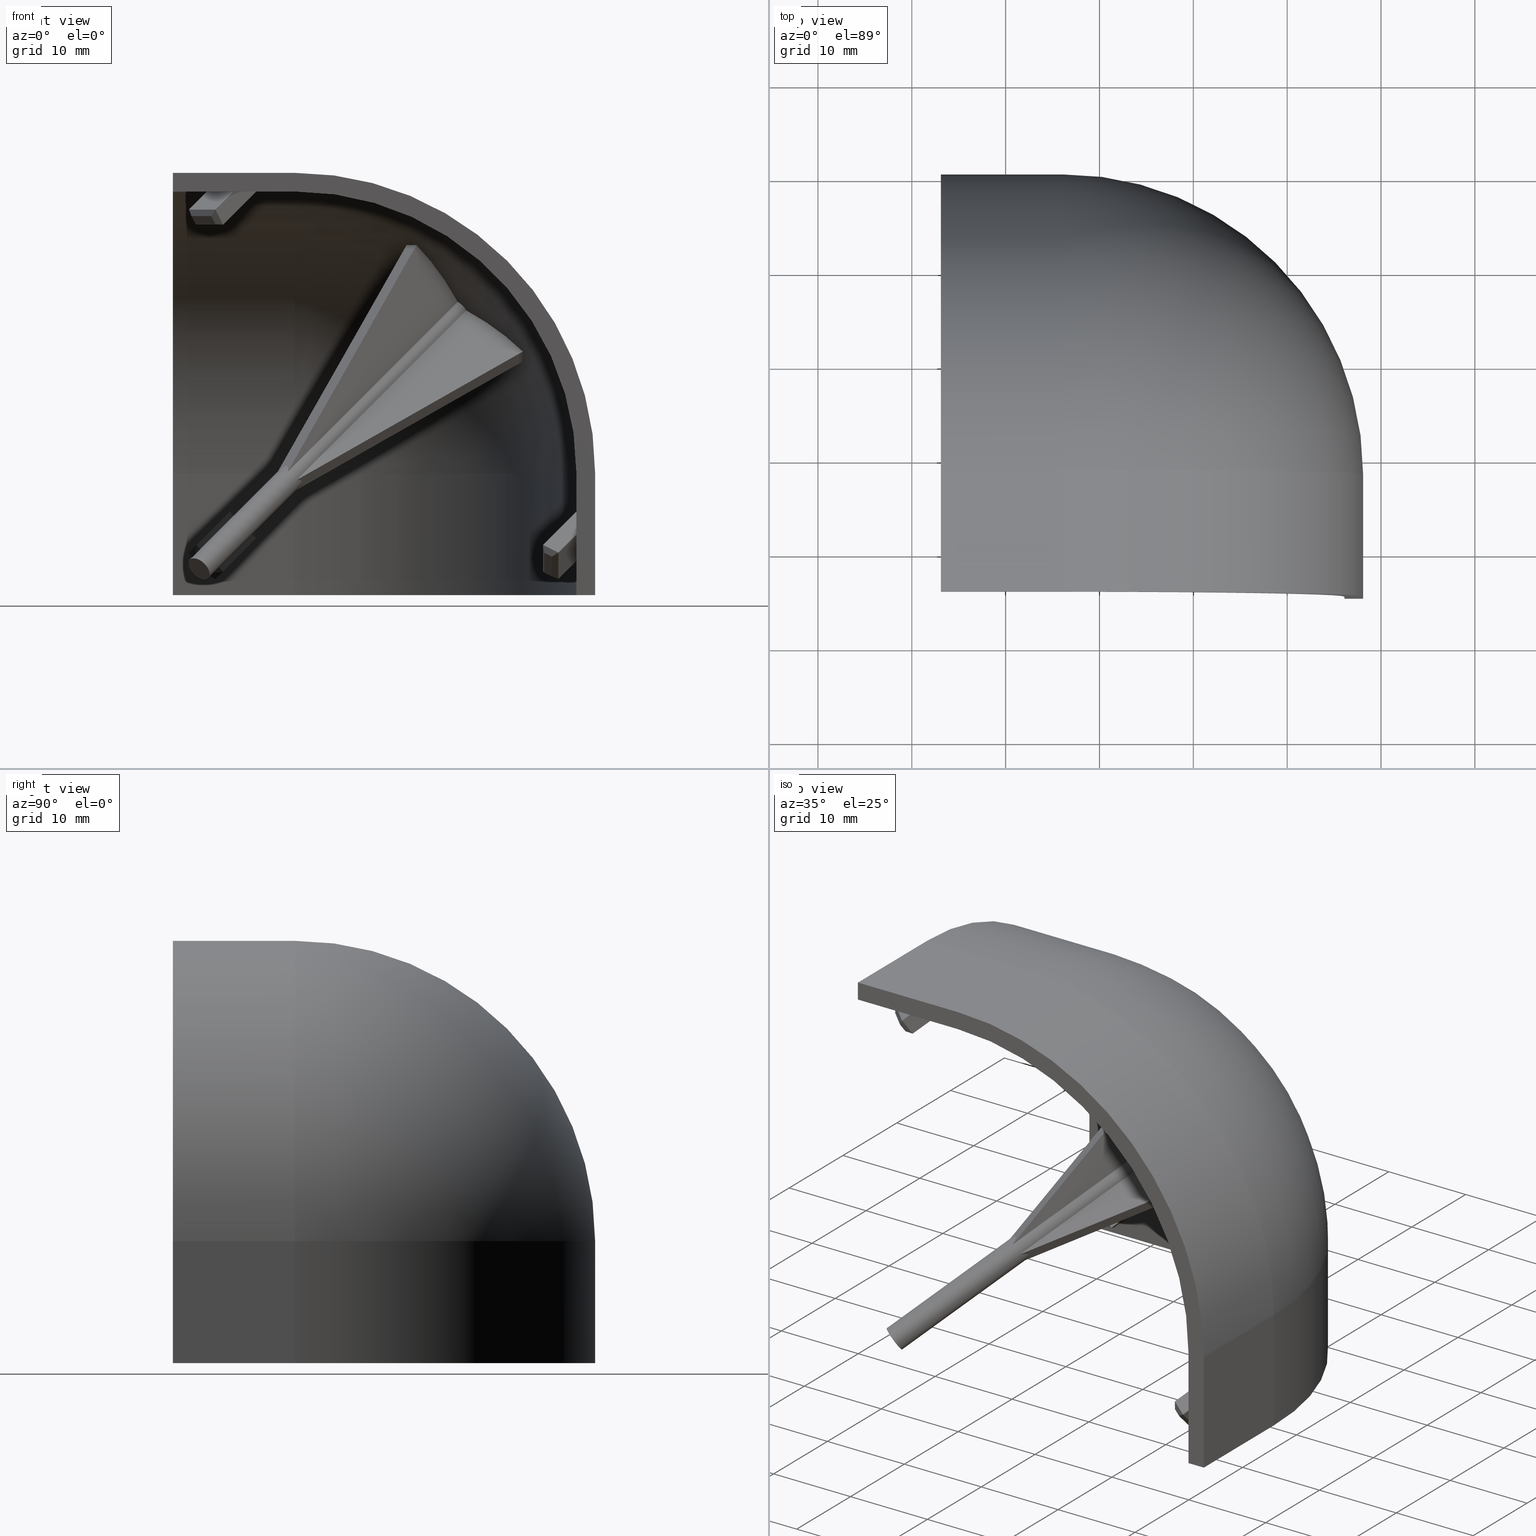
[diagram: canonical four-view strip — front | top / right | iso, engineering-drawing reading convention]
A machine part, canonical four-view strip (front | top / right | iso — engineering-drawing reading convention). The complete STEP part file that produces these views, byte-faithful:
ISO-10303-21;
HEADER;
/* Generated by software containing ST-Developer
 * from STEP Tools, Inc. (www.steptools.com) 
 */

FILE_DESCRIPTION(
/* description */ ('TAPPO TONDO GIUNTO A 3 VIE GRIGIO'),
/* implementation_level */ '2;1');

FILE_NAME(
/* name */ 'C:\\Users\\SJouini\\Desktop\\PER LAURA\\PAGINA 3\\18.104.0
0N.stp',
/* time_stamp */ '2015-02-11T17:08:51+01:00',
/* author */ ('SJouini'),
/* organization */ (''),
/* preprocessor_version */ 'ST-DEVELOPER v15.2',
/* originating_system */ 'Autodesk Inventor 2014',
/* authorisation */ '');

FILE_SCHEMA (('AUTOMOTIVE_DESIGN { 1 0 10303 214 3 1 1 }'));
ENDSEC;

DATA;
#10=ITEM_DEFINED_TRANSFORMATION($,$,#935,#1020);
#11=(
REPRESENTATION_RELATIONSHIP($,$,#1571,#1572)
REPRESENTATION_RELATIONSHIP_WITH_TRANSFORMATION(#10)
SHAPE_REPRESENTATION_RELATIONSHIP()
);
#12=CONTEXT_DEPENDENT_SHAPE_REPRESENTATION(#11,#1570);
#13=NEXT_ASSEMBLY_USAGE_OCCURRENCE('18.104.00G:1',$,$,#1575,#1574,$);
#14=SHAPE_REPRESENTATION_RELATIONSHIP('SRR','None',#1571,#15);
#15=ADVANCED_BREP_SHAPE_REPRESENTATION($,(#934),#1558);
#16=STYLED_ITEM($,(#1583),#934);
#17=PLANE($,#957);
#18=PLANE($,#960);
#19=PLANE($,#964);
#20=PLANE($,#965);
#21=PLANE($,#968);
#22=PLANE($,#971);
#23=PLANE($,#972);
#24=PLANE($,#979);
#25=PLANE($,#980);
#26=PLANE($,#982);
#27=PLANE($,#983);
#28=PLANE($,#984);
#29=PLANE($,#985);
#30=PLANE($,#986);
#31=PLANE($,#987);
#32=PLANE($,#988);
#33=PLANE($,#989);
#34=PLANE($,#990);
#35=PLANE($,#991);
#36=PLANE($,#992);
#37=PLANE($,#993);
#38=PLANE($,#994);
#39=PLANE($,#995);
#40=PLANE($,#996);
#41=PLANE($,#997);
#42=PLANE($,#998);
#43=PLANE($,#999);
#44=PLANE($,#1000);
#45=PLANE($,#1001);
#46=PLANE($,#1002);
#47=PLANE($,#1003);
#48=PLANE($,#1004);
#49=PLANE($,#1005);
#50=PLANE($,#1006);
#51=PLANE($,#1007);
#52=PLANE($,#1008);
#53=PLANE($,#1009);
#54=PLANE($,#1010);
#55=PLANE($,#1011);
#56=PLANE($,#1012);
#57=PLANE($,#1013);
#58=PLANE($,#1014);
#59=PLANE($,#1015);
#60=PLANE($,#1016);
#61=PLANE($,#1017);
#62=PLANE($,#1018);
#63=SPHERICAL_SURFACE($,#944,30.);
#64=SPHERICAL_SURFACE($,#973,32.);
#65=FACE_BOUND($,#327,.T.);
#66=FACE_BOUND($,#329,.T.);
#67=FACE_BOUND($,#336,.T.);
#68=FACE_BOUND($,#339,.T.);
#69=FACE_BOUND($,#347,.T.);
#70=LINE($,#1300,#169);
#71=LINE($,#1304,#170);
#72=LINE($,#1308,#171);
#73=LINE($,#1312,#172);
#74=LINE($,#1316,#173);
#75=LINE($,#1319,#174);
#76=LINE($,#1345,#175);
#77=LINE($,#1347,#176);
#78=LINE($,#1351,#177);
#79=LINE($,#1353,#178);
#80=LINE($,#1355,#179);
#81=LINE($,#1358,#180);
#82=LINE($,#1361,#181);
#83=LINE($,#1363,#182);
#84=LINE($,#1364,#183);
#85=LINE($,#1369,#184);
#86=LINE($,#1373,#185);
#87=LINE($,#1375,#186);
#88=LINE($,#1376,#187);
#89=LINE($,#1379,#188);
#90=LINE($,#1381,#189);
#91=LINE($,#1384,#190);
#92=LINE($,#1386,#191);
#93=LINE($,#1390,#192);
#94=LINE($,#1391,#193);
#95=LINE($,#1392,#194);
#96=LINE($,#1395,#195);
#97=LINE($,#1397,#196);
#98=LINE($,#1399,#197);
#99=LINE($,#1400,#198);
#100=LINE($,#1404,#199);
#101=LINE($,#1406,#200);
#102=LINE($,#1407,#201);
#103=LINE($,#1410,#202);
#104=LINE($,#1412,#203);
#105=LINE($,#1414,#204);
#106=LINE($,#1415,#205);
#107=LINE($,#1422,#206);
#108=LINE($,#1424,#207);
#109=LINE($,#1426,#208);
#110=LINE($,#1429,#209);
#111=LINE($,#1432,#210);
#112=LINE($,#1434,#211);
#113=LINE($,#1436,#212);
#114=LINE($,#1437,#213);
#115=LINE($,#1441,#214);
#116=LINE($,#1442,#215);
#117=LINE($,#1446,#216);
#118=LINE($,#1447,#217);
#119=LINE($,#1451,#218);
#120=LINE($,#1452,#219);
#121=LINE($,#1457,#220);
#122=LINE($,#1459,#221);
#123=LINE($,#1460,#222);
#124=LINE($,#1463,#223);
#125=LINE($,#1464,#224);
#126=LINE($,#1468,#225);
#127=LINE($,#1470,#226);
#128=LINE($,#1472,#227);
#129=LINE($,#1473,#228);
#130=LINE($,#1476,#229);
#131=LINE($,#1477,#230);
#132=LINE($,#1479,#231);
#133=LINE($,#1482,#232);
#134=LINE($,#1484,#233);
#135=LINE($,#1485,#234);
#136=LINE($,#1489,#235);
#137=LINE($,#1491,#236);
#138=LINE($,#1493,#237);
#139=LINE($,#1494,#238);
#140=LINE($,#1497,#239);
#141=LINE($,#1498,#240);
#142=LINE($,#1501,#241);
#143=LINE($,#1502,#242);
#144=LINE($,#1504,#243);
#145=LINE($,#1507,#244);
#146=LINE($,#1509,#245);
#147=LINE($,#1510,#246);
#148=LINE($,#1513,#247);
#149=LINE($,#1514,#248);
#150=LINE($,#1518,#249);
#151=LINE($,#1520,#250);
#152=LINE($,#1522,#251);
#153=LINE($,#1523,#252);
#154=LINE($,#1526,#253);
#155=LINE($,#1527,#254);
#156=LINE($,#1529,#255);
#157=LINE($,#1531,#256);
#158=LINE($,#1532,#257);
#159=LINE($,#1534,#258);
#160=LINE($,#1536,#259);
#161=LINE($,#1539,#260);
#162=LINE($,#1540,#261);
#163=LINE($,#1542,#262);
#164=LINE($,#1544,#263);
#165=LINE($,#1547,#264);
#166=LINE($,#1548,#265);
#167=LINE($,#1550,#266);
#168=LINE($,#1552,#267);
#169=VECTOR($,#1029,31.3487743008794);
#170=VECTOR($,#1032,31.3487742680335);
#171=VECTOR($,#1035,31.3487743130592);
#172=VECTOR($,#1038,31.348774313059);
#173=VECTOR($,#1041,31.3487743130594);
#174=VECTOR($,#1044,31.3487743130592);
#175=VECTOR($,#1073,2.);
#176=VECTOR($,#1074,13.);
#177=VECTOR($,#1077,12.9999999999998);
#178=VECTOR($,#1078,2.);
#179=VECTOR($,#1079,12.9999999999998);
#180=VECTOR($,#1082,13.);
#181=VECTOR($,#1085,12.9999999999998);
#182=VECTOR($,#1086,13.);
#183=VECTOR($,#1087,12.9999999999998);
#184=VECTOR($,#1092,13.0000000000001);
#185=VECTOR($,#1097,12.9999999999998);
#186=VECTOR($,#1098,13.);
#187=VECTOR($,#1099,12.9999999999998);
#188=VECTOR($,#1102,2.00000000000001);
#189=VECTOR($,#1103,13.);
#190=VECTOR($,#1106,13.);
#191=VECTOR($,#1107,13.);
#192=VECTOR($,#1112,12.9999999999998);
#193=VECTOR($,#1113,13.);
#194=VECTOR($,#1114,12.9999999999998);
#195=VECTOR($,#1115,3.46410161530466);
#196=VECTOR($,#1116,4.00000000002329);
#197=VECTOR($,#1117,3.46410161520599);
#198=VECTOR($,#1118,4.00000000002537);
#199=VECTOR($,#1123,13.);
#200=VECTOR($,#1126,12.9999999999998);
#201=VECTOR($,#1127,12.9999999999998);
#202=VECTOR($,#1128,3.99999999981728);
#203=VECTOR($,#1129,3.4641016150962);
#204=VECTOR($,#1130,3.99999999977504);
#205=VECTOR($,#1131,3.46410161502379);
#206=VECTOR($,#1142,12.9999999999998);
#207=VECTOR($,#1145,12.9999999999998);
#208=VECTOR($,#1148,12.9999999999999);
#209=VECTOR($,#1153,12.9999999999999);
#210=VECTOR($,#1154,3.46410161503992);
#211=VECTOR($,#1155,3.99999999971386);
#212=VECTOR($,#1156,3.46410161498843);
#213=VECTOR($,#1157,3.99999999972648);
#214=VECTOR($,#1164,30.9555790759951);
#215=VECTOR($,#1165,30.9555790302484);
#216=VECTOR($,#1172,30.9555790759953);
#217=VECTOR($,#1173,30.9555790759949);
#218=VECTOR($,#1180,30.9555790635604);
#219=VECTOR($,#1181,30.955579075995);
#220=VECTOR($,#1188,6.1399298416311);
#221=VECTOR($,#1189,1.99999999997232);
#222=VECTOR($,#1190,3.31150271684865);
#223=VECTOR($,#1193,6.13992984149428);
#224=VECTOR($,#1194,4.00000000011949);
#225=VECTOR($,#1197,3.0000000000996);
#226=VECTOR($,#1198,1.00000000000475);
#227=VECTOR($,#1199,3.00000000009959);
#228=VECTOR($,#1200,1.00000000000475);
#229=VECTOR($,#1203,3.99999999995302);
#230=VECTOR($,#1204,3.31150271679411);
#231=VECTOR($,#1207,2.00000000023374);
#232=VECTOR($,#1210,6.14205116169807);
#233=VECTOR($,#1211,3.9999999998547);
#234=VECTOR($,#1212,6.14205116164716);
#235=VECTOR($,#1215,2.99999999987222);
#236=VECTOR($,#1216,1.00000000011846);
#237=VECTOR($,#1217,2.99999999987222);
#238=VECTOR($,#1218,1.00000000011846);
#239=VECTOR($,#1221,1.99999999995872);
#240=VECTOR($,#1222,3.31362403689396);
#241=VECTOR($,#1225,3.31362403691132);
#242=VECTOR($,#1226,1.9999999999321);
#243=VECTOR($,#1229,4.00000000019829);
#244=VECTOR($,#1232,6.14205116203253);
#245=VECTOR($,#1233,4.00000000051261);
#246=VECTOR($,#1234,6.14205116195454);
#247=VECTOR($,#1237,3.31362403751265);
#248=VECTOR($,#1238,1.99999999963854);
#249=VECTOR($,#1241,1.00000000009004);
#250=VECTOR($,#1242,3.00000000021618);
#251=VECTOR($,#1243,1.00000000009004);
#252=VECTOR($,#1244,3.00000000021617);
#253=VECTOR($,#1247,2.00000000017998);
#254=VECTOR($,#1248,3.31362403732773);
#255=VECTOR($,#1251,4.00000000006022);
#256=VECTOR($,#1254,0.866025405023518);
#257=VECTOR($,#1255,0.866025403403457);
#258=VECTOR($,#1258,0.866025402259943);
#259=VECTOR($,#1261,0.866025404024427);
#260=VECTOR($,#1266,0.86602540262504);
#261=VECTOR($,#1267,0.866025403451196);
#262=VECTOR($,#1270,0.866025405104728);
#263=VECTOR($,#1273,0.866025404251112);
#264=VECTOR($,#1278,0.86602540286466);
#265=VECTOR($,#1279,0.866025404655954);
#266=VECTOR($,#1282,0.866025404650975);
#267=VECTOR($,#1285,0.866025402850209);
#268=ELLIPSE($,#938,5.09339588938347,1.40000009909664);
#269=ELLIPSE($,#940,5.09339619645517,1.40000015972746);
#270=ELLIPSE($,#942,5.09339540071324,1.40000000000002);
#271=FACE_OUTER_BOUND($,#326,.T.);
#272=FACE_OUTER_BOUND($,#328,.T.);
#273=FACE_OUTER_BOUND($,#330,.T.);
#274=FACE_OUTER_BOUND($,#331,.T.);
#275=FACE_OUTER_BOUND($,#332,.T.);
#276=FACE_OUTER_BOUND($,#333,.T.);
#277=FACE_OUTER_BOUND($,#334,.T.);
#278=FACE_OUTER_BOUND($,#335,.T.);
#279=FACE_OUTER_BOUND($,#337,.T.);
#280=FACE_OUTER_BOUND($,#338,.T.);
#281=FACE_OUTER_BOUND($,#340,.T.);
#282=FACE_OUTER_BOUND($,#341,.T.);
#283=FACE_OUTER_BOUND($,#342,.T.);
#284=FACE_OUTER_BOUND($,#343,.T.);
#285=FACE_OUTER_BOUND($,#344,.T.);
#286=FACE_OUTER_BOUND($,#345,.T.);
#287=FACE_OUTER_BOUND($,#346,.T.);
#288=FACE_OUTER_BOUND($,#348,.T.);
#289=FACE_OUTER_BOUND($,#349,.T.);
#290=FACE_OUTER_BOUND($,#350,.T.);
#291=FACE_OUTER_BOUND($,#351,.T.);
#292=FACE_OUTER_BOUND($,#352,.T.);
#293=FACE_OUTER_BOUND($,#353,.T.);
#294=FACE_OUTER_BOUND($,#354,.T.);
#295=FACE_OUTER_BOUND($,#355,.T.);
#296=FACE_OUTER_BOUND($,#356,.T.);
#297=FACE_OUTER_BOUND($,#357,.T.);
#298=FACE_OUTER_BOUND($,#358,.T.);
#299=FACE_OUTER_BOUND($,#359,.T.);
#300=FACE_OUTER_BOUND($,#360,.T.);
#301=FACE_OUTER_BOUND($,#361,.T.);
#302=FACE_OUTER_BOUND($,#362,.T.);
#303=FACE_OUTER_BOUND($,#363,.T.);
#304=FACE_OUTER_BOUND($,#364,.T.);
#305=FACE_OUTER_BOUND($,#365,.T.);
#306=FACE_OUTER_BOUND($,#366,.T.);
#307=FACE_OUTER_BOUND($,#367,.T.);
#308=FACE_OUTER_BOUND($,#368,.T.);
#309=FACE_OUTER_BOUND($,#369,.T.);
#310=FACE_OUTER_BOUND($,#370,.T.);
#311=FACE_OUTER_BOUND($,#371,.T.);
#312=FACE_OUTER_BOUND($,#372,.T.);
#313=FACE_OUTER_BOUND($,#373,.T.);
#314=FACE_OUTER_BOUND($,#374,.T.);
#315=FACE_OUTER_BOUND($,#375,.T.);
#316=FACE_OUTER_BOUND($,#376,.T.);
#317=FACE_OUTER_BOUND($,#377,.T.);
#318=FACE_OUTER_BOUND($,#378,.T.);
#319=FACE_OUTER_BOUND($,#379,.T.);
#320=FACE_OUTER_BOUND($,#380,.T.);
#321=FACE_OUTER_BOUND($,#381,.T.);
#322=FACE_OUTER_BOUND($,#382,.T.);
#323=FACE_OUTER_BOUND($,#383,.T.);
#324=FACE_OUTER_BOUND($,#384,.T.);
#325=FACE_OUTER_BOUND($,#385,.T.);
#326=EDGE_LOOP($,(#617));
#327=EDGE_LOOP($,(#618,#619,#620,#621,#622,#623,#624,#625,#626,#627,#628,
#629));
#328=EDGE_LOOP($,(#630,#631,#632));
#329=EDGE_LOOP($,(#633,#634,#635,#636,#637,#638,#639,#640,#641,#642,#643,
#644));
#330=EDGE_LOOP($,(#645,#646,#647,#648,#649,#650,#651,#652));
#331=EDGE_LOOP($,(#653,#654,#655,#656));
#332=EDGE_LOOP($,(#657,#658,#659,#660));
#333=EDGE_LOOP($,(#661,#662,#663,#664));
#334=EDGE_LOOP($,(#665,#666,#667,#668,#669,#670,#671,#672));
#335=EDGE_LOOP($,(#673,#674,#675,#676));
#336=EDGE_LOOP($,(#677,#678,#679,#680));
#337=EDGE_LOOP($,(#681,#682,#683,#684));
#338=EDGE_LOOP($,(#685,#686,#687,#688));
#339=EDGE_LOOP($,(#689,#690,#691,#692));
#340=EDGE_LOOP($,(#693,#694,#695,#696,#697,#698,#699,#700));
#341=EDGE_LOOP($,(#701,#702,#703));
#342=EDGE_LOOP($,(#704,#705,#706,#707));
#343=EDGE_LOOP($,(#708,#709,#710,#711));
#344=EDGE_LOOP($,(#712,#713,#714,#715));
#345=EDGE_LOOP($,(#716,#717,#718,#719));
#346=EDGE_LOOP($,(#720,#721,#722,#723));
#347=EDGE_LOOP($,(#724,#725,#726,#727));
#348=EDGE_LOOP($,(#728,#729,#730,#731));
#349=EDGE_LOOP($,(#732));
#350=EDGE_LOOP($,(#733,#734,#735,#736));
#351=EDGE_LOOP($,(#737,#738,#739));
#352=EDGE_LOOP($,(#740,#741,#742));
#353=EDGE_LOOP($,(#743,#744,#745,#746));
#354=EDGE_LOOP($,(#747,#748,#749));
#355=EDGE_LOOP($,(#750,#751,#752));
#356=EDGE_LOOP($,(#753,#754,#755,#756));
#357=EDGE_LOOP($,(#757,#758,#759));
#358=EDGE_LOOP($,(#760,#761,#762));
#359=EDGE_LOOP($,(#763,#764,#765,#766));
#360=EDGE_LOOP($,(#767,#768,#769,#770));
#361=EDGE_LOOP($,(#771,#772,#773,#774));
#362=EDGE_LOOP($,(#775,#776,#777,#778));
#363=EDGE_LOOP($,(#779,#780,#781,#782));
#364=EDGE_LOOP($,(#783,#784,#785,#786));
#365=EDGE_LOOP($,(#787,#788,#789,#790));
#366=EDGE_LOOP($,(#791,#792,#793,#794));
#367=EDGE_LOOP($,(#795,#796,#797,#798));
#368=EDGE_LOOP($,(#799,#800,#801,#802));
#369=EDGE_LOOP($,(#803,#804,#805,#806));
#370=EDGE_LOOP($,(#807,#808,#809,#810));
#371=EDGE_LOOP($,(#811,#812,#813,#814));
#372=EDGE_LOOP($,(#815,#816,#817,#818));
#373=EDGE_LOOP($,(#819,#820,#821,#822));
#374=EDGE_LOOP($,(#823,#824,#825,#826));
#375=EDGE_LOOP($,(#827,#828,#829,#830));
#376=EDGE_LOOP($,(#831,#832,#833,#834));
#377=EDGE_LOOP($,(#835,#836,#837,#838));
#378=EDGE_LOOP($,(#839,#840,#841,#842));
#379=EDGE_LOOP($,(#843,#844,#845,#846));
#380=EDGE_LOOP($,(#847,#848,#849,#850));
#381=EDGE_LOOP($,(#851,#852,#853,#854));
#382=EDGE_LOOP($,(#855,#856,#857,#858));
#383=EDGE_LOOP($,(#859,#860,#861,#862));
#384=EDGE_LOOP($,(#863,#864,#865,#866));
#385=EDGE_LOOP($,(#867,#868,#869,#870));
#386=CIRCLE($,#937,1.4);
#387=CIRCLE($,#939,1.4);
#388=CIRCLE($,#941,1.4);
#389=CIRCLE($,#943,1.4);
#390=CIRCLE($,#945,30.);
#391=CIRCLE($,#946,30.);
#392=CIRCLE($,#947,30.);
#393=CIRCLE($,#948,29.9616539883931);
#394=CIRCLE($,#949,29.9906235346983);
#395=CIRCLE($,#950,29.9906235346983);
#396=CIRCLE($,#951,29.9616539883931);
#397=CIRCLE($,#952,29.9906235346983);
#398=CIRCLE($,#953,29.9906235346983);
#399=CIRCLE($,#954,29.9616539883931);
#400=CIRCLE($,#955,29.9906235346983);
#401=CIRCLE($,#956,29.9906235346983);
#402=CIRCLE($,#958,32.);
#403=CIRCLE($,#959,30.);
#404=CIRCLE($,#962,32.);
#405=CIRCLE($,#963,32.);
#406=CIRCLE($,#966,29.9999999999999);
#407=CIRCLE($,#967,31.9999999999999);
#408=CIRCLE($,#970,30.);
#409=CIRCLE($,#974,32.);
#410=CIRCLE($,#975,32.);
#411=VERTEX_POINT($,#1294);
#412=VERTEX_POINT($,#1296);
#413=VERTEX_POINT($,#1297);
#414=VERTEX_POINT($,#1299);
#415=VERTEX_POINT($,#1301);
#416=VERTEX_POINT($,#1303);
#417=VERTEX_POINT($,#1305);
#418=VERTEX_POINT($,#1307);
#419=VERTEX_POINT($,#1309);
#420=VERTEX_POINT($,#1311);
#421=VERTEX_POINT($,#1313);
#422=VERTEX_POINT($,#1315);
#423=VERTEX_POINT($,#1317);
#424=VERTEX_POINT($,#1321);
#425=VERTEX_POINT($,#1322);
#426=VERTEX_POINT($,#1324);
#427=VERTEX_POINT($,#1327);
#428=VERTEX_POINT($,#1328);
#429=VERTEX_POINT($,#1331);
#430=VERTEX_POINT($,#1333);
#431=VERTEX_POINT($,#1336);
#432=VERTEX_POINT($,#1338);
#433=VERTEX_POINT($,#1343);
#434=VERTEX_POINT($,#1344);
#435=VERTEX_POINT($,#1346);
#436=VERTEX_POINT($,#1348);
#437=VERTEX_POINT($,#1350);
#438=VERTEX_POINT($,#1352);
#439=VERTEX_POINT($,#1354);
#440=VERTEX_POINT($,#1356);
#441=VERTEX_POINT($,#1360);
#442=VERTEX_POINT($,#1362);
#443=VERTEX_POINT($,#1366);
#444=VERTEX_POINT($,#1368);
#445=VERTEX_POINT($,#1372);
#446=VERTEX_POINT($,#1374);
#447=VERTEX_POINT($,#1378);
#448=VERTEX_POINT($,#1380);
#449=VERTEX_POINT($,#1382);
#450=VERTEX_POINT($,#1385);
#451=VERTEX_POINT($,#1389);
#452=VERTEX_POINT($,#1393);
#453=VERTEX_POINT($,#1394);
#454=VERTEX_POINT($,#1396);
#455=VERTEX_POINT($,#1398);
#456=VERTEX_POINT($,#1402);
#457=VERTEX_POINT($,#1408);
#458=VERTEX_POINT($,#1409);
#459=VERTEX_POINT($,#1411);
#460=VERTEX_POINT($,#1413);
#461=VERTEX_POINT($,#1418);
#462=VERTEX_POINT($,#1430);
#463=VERTEX_POINT($,#1431);
#464=VERTEX_POINT($,#1433);
#465=VERTEX_POINT($,#1435);
#466=VERTEX_POINT($,#1456);
#467=VERTEX_POINT($,#1458);
#468=VERTEX_POINT($,#1462);
#469=VERTEX_POINT($,#1466);
#470=VERTEX_POINT($,#1467);
#471=VERTEX_POINT($,#1469);
#472=VERTEX_POINT($,#1471);
#473=VERTEX_POINT($,#1475);
#474=VERTEX_POINT($,#1481);
#475=VERTEX_POINT($,#1483);
#476=VERTEX_POINT($,#1487);
#477=VERTEX_POINT($,#1488);
#478=VERTEX_POINT($,#1490);
#479=VERTEX_POINT($,#1492);
#480=VERTEX_POINT($,#1496);
#481=VERTEX_POINT($,#1500);
#482=VERTEX_POINT($,#1506);
#483=VERTEX_POINT($,#1508);
#484=VERTEX_POINT($,#1512);
#485=VERTEX_POINT($,#1516);
#486=VERTEX_POINT($,#1517);
#487=VERTEX_POINT($,#1519);
#488=VERTEX_POINT($,#1521);
#489=VERTEX_POINT($,#1525);
#490=EDGE_CURVE($,#411,#411,#386,.T.);
#491=EDGE_CURVE($,#412,#413,#268,.T.);
#492=EDGE_CURVE($,#412,#414,#70,.T.);
#493=EDGE_CURVE($,#415,#414,#387,.T.);
#494=EDGE_CURVE($,#416,#415,#71,.T.);
#495=EDGE_CURVE($,#417,#416,#269,.T.);
#496=EDGE_CURVE($,#417,#418,#72,.T.);
#497=EDGE_CURVE($,#419,#418,#388,.T.);
#498=EDGE_CURVE($,#420,#419,#73,.T.);
#499=EDGE_CURVE($,#421,#420,#270,.T.);
#500=EDGE_CURVE($,#421,#422,#74,.T.);
#501=EDGE_CURVE($,#423,#422,#389,.T.);
#502=EDGE_CURVE($,#413,#423,#75,.T.);
#503=EDGE_CURVE($,#424,#425,#390,.T.);
#504=EDGE_CURVE($,#426,#424,#391,.T.);
#505=EDGE_CURVE($,#426,#425,#392,.T.);
#506=EDGE_CURVE($,#427,#428,#393,.T.);
#507=EDGE_CURVE($,#428,#423,#394,.T.);
#508=EDGE_CURVE($,#429,#422,#395,.T.);
#509=EDGE_CURVE($,#429,#430,#396,.T.);
#510=EDGE_CURVE($,#430,#419,#397,.T.);
#511=EDGE_CURVE($,#431,#418,#398,.T.);
#512=EDGE_CURVE($,#431,#432,#399,.T.);
#513=EDGE_CURVE($,#432,#415,#400,.T.);
#514=EDGE_CURVE($,#427,#414,#401,.T.);
#515=EDGE_CURVE($,#433,#434,#76,.T.);
#516=EDGE_CURVE($,#435,#433,#77,.T.);
#517=EDGE_CURVE($,#435,#436,#402,.T.);
#518=EDGE_CURVE($,#436,#437,#78,.T.);
#519=EDGE_CURVE($,#437,#438,#79,.T.);
#520=EDGE_CURVE($,#438,#439,#80,.T.);
#521=EDGE_CURVE($,#439,#440,#403,.T.);
#522=EDGE_CURVE($,#440,#434,#81,.T.);
#523=EDGE_CURVE($,#441,#433,#82,.T.);
#524=EDGE_CURVE($,#442,#441,#83,.T.);
#525=EDGE_CURVE($,#442,#435,#84,.T.);
#526=EDGE_CURVE($,#443,#441,#404,.T.);
#527=EDGE_CURVE($,#444,#443,#85,.T.);
#528=EDGE_CURVE($,#444,#442,#405,.T.);
#529=EDGE_CURVE($,#445,#443,#86,.T.);
#530=EDGE_CURVE($,#446,#445,#87,.T.);
#531=EDGE_CURVE($,#446,#444,#88,.T.);
#532=EDGE_CURVE($,#447,#445,#89,.T.);
#533=EDGE_CURVE($,#448,#447,#90,.T.);
#534=EDGE_CURVE($,#449,#448,#406,.T.);
#535=EDGE_CURVE($,#438,#449,#91,.T.);
#536=EDGE_CURVE($,#437,#450,#92,.T.);
#537=EDGE_CURVE($,#450,#446,#407,.T.);
#538=EDGE_CURVE($,#451,#447,#93,.T.);
#539=EDGE_CURVE($,#425,#451,#94,.T.);
#540=EDGE_CURVE($,#425,#448,#95,.T.);
#541=EDGE_CURVE($,#452,#453,#96,.T.);
#542=EDGE_CURVE($,#453,#454,#97,.T.);
#543=EDGE_CURVE($,#454,#455,#98,.T.);
#544=EDGE_CURVE($,#455,#452,#99,.T.);
#545=EDGE_CURVE($,#456,#451,#408,.T.);
#546=EDGE_CURVE($,#424,#456,#100,.T.);
#547=EDGE_CURVE($,#434,#456,#101,.T.);
#548=EDGE_CURVE($,#440,#424,#102,.T.);
#549=EDGE_CURVE($,#457,#458,#103,.T.);
#550=EDGE_CURVE($,#458,#459,#104,.T.);
#551=EDGE_CURVE($,#459,#460,#105,.T.);
#552=EDGE_CURVE($,#460,#457,#106,.T.);
#553=EDGE_CURVE($,#461,#444,#409,.T.);
#554=EDGE_CURVE($,#442,#461,#410,.T.);
#555=EDGE_CURVE($,#461,#450,#107,.T.);
#556=EDGE_CURVE($,#449,#426,#108,.T.);
#557=EDGE_CURVE($,#436,#461,#109,.T.);
#558=EDGE_CURVE($,#439,#426,#110,.T.);
#559=EDGE_CURVE($,#462,#463,#111,.T.);
#560=EDGE_CURVE($,#464,#462,#112,.T.);
#561=EDGE_CURVE($,#465,#464,#113,.T.);
#562=EDGE_CURVE($,#463,#465,#114,.T.);
#563=EDGE_CURVE($,#417,#431,#115,.T.);
#564=EDGE_CURVE($,#416,#432,#116,.T.);
#565=EDGE_CURVE($,#421,#429,#117,.T.);
#566=EDGE_CURVE($,#420,#430,#118,.T.);
#567=EDGE_CURVE($,#412,#427,#119,.T.);
#568=EDGE_CURVE($,#413,#428,#120,.T.);
#569=EDGE_CURVE($,#452,#466,#121,.T.);
#570=EDGE_CURVE($,#466,#467,#122,.T.);
#571=EDGE_CURVE($,#453,#467,#123,.T.);
#572=EDGE_CURVE($,#455,#468,#124,.T.);
#573=EDGE_CURVE($,#468,#466,#125,.T.);
#574=EDGE_CURVE($,#469,#470,#126,.T.);
#575=EDGE_CURVE($,#470,#471,#127,.T.);
#576=EDGE_CURVE($,#471,#472,#128,.T.);
#577=EDGE_CURVE($,#472,#469,#129,.T.);
#578=EDGE_CURVE($,#467,#473,#130,.T.);
#579=EDGE_CURVE($,#454,#473,#131,.T.);
#580=EDGE_CURVE($,#473,#468,#132,.T.);
#581=EDGE_CURVE($,#462,#474,#133,.T.);
#582=EDGE_CURVE($,#474,#475,#134,.T.);
#583=EDGE_CURVE($,#464,#475,#135,.T.);
#584=EDGE_CURVE($,#476,#477,#136,.T.);
#585=EDGE_CURVE($,#477,#478,#137,.T.);
#586=EDGE_CURVE($,#478,#479,#138,.T.);
#587=EDGE_CURVE($,#479,#476,#139,.T.);
#588=EDGE_CURVE($,#475,#480,#140,.T.);
#589=EDGE_CURVE($,#465,#480,#141,.T.);
#590=EDGE_CURVE($,#463,#481,#142,.T.);
#591=EDGE_CURVE($,#481,#474,#143,.T.);
#592=EDGE_CURVE($,#480,#481,#144,.T.);
#593=EDGE_CURVE($,#457,#482,#145,.T.);
#594=EDGE_CURVE($,#482,#483,#146,.T.);
#595=EDGE_CURVE($,#458,#483,#147,.T.);
#596=EDGE_CURVE($,#460,#484,#148,.T.);
#597=EDGE_CURVE($,#484,#482,#149,.T.);
#598=EDGE_CURVE($,#485,#486,#150,.T.);
#599=EDGE_CURVE($,#486,#487,#151,.T.);
#600=EDGE_CURVE($,#487,#488,#152,.T.);
#601=EDGE_CURVE($,#488,#485,#153,.T.);
#602=EDGE_CURVE($,#483,#489,#154,.T.);
#603=EDGE_CURVE($,#459,#489,#155,.T.);
#604=EDGE_CURVE($,#489,#484,#156,.T.);
#605=EDGE_CURVE($,#483,#488,#157,.T.);
#606=EDGE_CURVE($,#485,#482,#158,.T.);
#607=EDGE_CURVE($,#486,#484,#159,.T.);
#608=EDGE_CURVE($,#489,#487,#160,.T.);
#609=EDGE_CURVE($,#467,#472,#161,.T.);
#610=EDGE_CURVE($,#469,#466,#162,.T.);
#611=EDGE_CURVE($,#470,#468,#163,.T.);
#612=EDGE_CURVE($,#473,#471,#164,.T.);
#613=EDGE_CURVE($,#474,#479,#165,.T.);
#614=EDGE_CURVE($,#476,#481,#166,.T.);
#615=EDGE_CURVE($,#477,#480,#167,.T.);
#616=EDGE_CURVE($,#475,#478,#168,.T.);
#617=ORIENTED_EDGE($,*,*,#490,.T.);
#618=ORIENTED_EDGE($,*,*,#491,.F.);
#619=ORIENTED_EDGE($,*,*,#492,.T.);
#620=ORIENTED_EDGE($,*,*,#493,.F.);
#621=ORIENTED_EDGE($,*,*,#494,.F.);
#622=ORIENTED_EDGE($,*,*,#495,.F.);
#623=ORIENTED_EDGE($,*,*,#496,.T.);
#624=ORIENTED_EDGE($,*,*,#497,.F.);
#625=ORIENTED_EDGE($,*,*,#498,.F.);
#626=ORIENTED_EDGE($,*,*,#499,.F.);
#627=ORIENTED_EDGE($,*,*,#500,.T.);
#628=ORIENTED_EDGE($,*,*,#501,.F.);
#629=ORIENTED_EDGE($,*,*,#502,.F.);
#630=ORIENTED_EDGE($,*,*,#503,.F.);
#631=ORIENTED_EDGE($,*,*,#504,.F.);
#632=ORIENTED_EDGE($,*,*,#505,.T.);
#633=ORIENTED_EDGE($,*,*,#506,.T.);
#634=ORIENTED_EDGE($,*,*,#507,.T.);
#635=ORIENTED_EDGE($,*,*,#501,.T.);
#636=ORIENTED_EDGE($,*,*,#508,.F.);
#637=ORIENTED_EDGE($,*,*,#509,.T.);
#638=ORIENTED_EDGE($,*,*,#510,.T.);
#639=ORIENTED_EDGE($,*,*,#497,.T.);
#640=ORIENTED_EDGE($,*,*,#511,.F.);
#641=ORIENTED_EDGE($,*,*,#512,.T.);
#642=ORIENTED_EDGE($,*,*,#513,.T.);
#643=ORIENTED_EDGE($,*,*,#493,.T.);
#644=ORIENTED_EDGE($,*,*,#514,.F.);
#645=ORIENTED_EDGE($,*,*,#515,.F.);
#646=ORIENTED_EDGE($,*,*,#516,.F.);
#647=ORIENTED_EDGE($,*,*,#517,.T.);
#648=ORIENTED_EDGE($,*,*,#518,.T.);
#649=ORIENTED_EDGE($,*,*,#519,.T.);
#650=ORIENTED_EDGE($,*,*,#520,.T.);
#651=ORIENTED_EDGE($,*,*,#521,.T.);
#652=ORIENTED_EDGE($,*,*,#522,.T.);
#653=ORIENTED_EDGE($,*,*,#523,.F.);
#654=ORIENTED_EDGE($,*,*,#524,.F.);
#655=ORIENTED_EDGE($,*,*,#525,.T.);
#656=ORIENTED_EDGE($,*,*,#516,.T.);
#657=ORIENTED_EDGE($,*,*,#526,.F.);
#658=ORIENTED_EDGE($,*,*,#527,.F.);
#659=ORIENTED_EDGE($,*,*,#528,.T.);
#660=ORIENTED_EDGE($,*,*,#524,.T.);
#661=ORIENTED_EDGE($,*,*,#529,.F.);
#662=ORIENTED_EDGE($,*,*,#530,.F.);
#663=ORIENTED_EDGE($,*,*,#531,.T.);
#664=ORIENTED_EDGE($,*,*,#527,.T.);
#665=ORIENTED_EDGE($,*,*,#532,.F.);
#666=ORIENTED_EDGE($,*,*,#533,.F.);
#667=ORIENTED_EDGE($,*,*,#534,.F.);
#668=ORIENTED_EDGE($,*,*,#535,.F.);
#669=ORIENTED_EDGE($,*,*,#519,.F.);
#670=ORIENTED_EDGE($,*,*,#536,.T.);
#671=ORIENTED_EDGE($,*,*,#537,.T.);
#672=ORIENTED_EDGE($,*,*,#530,.T.);
#673=ORIENTED_EDGE($,*,*,#538,.F.);
#674=ORIENTED_EDGE($,*,*,#539,.F.);
#675=ORIENTED_EDGE($,*,*,#540,.T.);
#676=ORIENTED_EDGE($,*,*,#533,.T.);
#677=ORIENTED_EDGE($,*,*,#541,.T.);
#678=ORIENTED_EDGE($,*,*,#542,.T.);
#679=ORIENTED_EDGE($,*,*,#543,.T.);
#680=ORIENTED_EDGE($,*,*,#544,.T.);
#681=ORIENTED_EDGE($,*,*,#545,.F.);
#682=ORIENTED_EDGE($,*,*,#546,.F.);
#683=ORIENTED_EDGE($,*,*,#503,.T.);
#684=ORIENTED_EDGE($,*,*,#539,.T.);
#685=ORIENTED_EDGE($,*,*,#547,.F.);
#686=ORIENTED_EDGE($,*,*,#522,.F.);
#687=ORIENTED_EDGE($,*,*,#548,.T.);
#688=ORIENTED_EDGE($,*,*,#546,.T.);
#689=ORIENTED_EDGE($,*,*,#549,.T.);
#690=ORIENTED_EDGE($,*,*,#550,.T.);
#691=ORIENTED_EDGE($,*,*,#551,.T.);
#692=ORIENTED_EDGE($,*,*,#552,.T.);
#693=ORIENTED_EDGE($,*,*,#515,.T.);
#694=ORIENTED_EDGE($,*,*,#547,.T.);
#695=ORIENTED_EDGE($,*,*,#545,.T.);
#696=ORIENTED_EDGE($,*,*,#538,.T.);
#697=ORIENTED_EDGE($,*,*,#532,.T.);
#698=ORIENTED_EDGE($,*,*,#529,.T.);
#699=ORIENTED_EDGE($,*,*,#526,.T.);
#700=ORIENTED_EDGE($,*,*,#523,.T.);
#701=ORIENTED_EDGE($,*,*,#553,.F.);
#702=ORIENTED_EDGE($,*,*,#554,.F.);
#703=ORIENTED_EDGE($,*,*,#528,.F.);
#704=ORIENTED_EDGE($,*,*,#537,.F.);
#705=ORIENTED_EDGE($,*,*,#555,.F.);
#706=ORIENTED_EDGE($,*,*,#553,.T.);
#707=ORIENTED_EDGE($,*,*,#531,.F.);
#708=ORIENTED_EDGE($,*,*,#505,.F.);
#709=ORIENTED_EDGE($,*,*,#556,.F.);
#710=ORIENTED_EDGE($,*,*,#534,.T.);
#711=ORIENTED_EDGE($,*,*,#540,.F.);
#712=ORIENTED_EDGE($,*,*,#517,.F.);
#713=ORIENTED_EDGE($,*,*,#525,.F.);
#714=ORIENTED_EDGE($,*,*,#554,.T.);
#715=ORIENTED_EDGE($,*,*,#557,.F.);
#716=ORIENTED_EDGE($,*,*,#518,.F.);
#717=ORIENTED_EDGE($,*,*,#557,.T.);
#718=ORIENTED_EDGE($,*,*,#555,.T.);
#719=ORIENTED_EDGE($,*,*,#536,.F.);
#720=ORIENTED_EDGE($,*,*,#520,.F.);
#721=ORIENTED_EDGE($,*,*,#535,.T.);
#722=ORIENTED_EDGE($,*,*,#556,.T.);
#723=ORIENTED_EDGE($,*,*,#558,.F.);
#724=ORIENTED_EDGE($,*,*,#559,.F.);
#725=ORIENTED_EDGE($,*,*,#560,.F.);
#726=ORIENTED_EDGE($,*,*,#561,.F.);
#727=ORIENTED_EDGE($,*,*,#562,.F.);
#728=ORIENTED_EDGE($,*,*,#521,.F.);
#729=ORIENTED_EDGE($,*,*,#558,.T.);
#730=ORIENTED_EDGE($,*,*,#504,.T.);
#731=ORIENTED_EDGE($,*,*,#548,.F.);
#732=ORIENTED_EDGE($,*,*,#490,.F.);
#733=ORIENTED_EDGE($,*,*,#512,.F.);
#734=ORIENTED_EDGE($,*,*,#563,.F.);
#735=ORIENTED_EDGE($,*,*,#495,.T.);
#736=ORIENTED_EDGE($,*,*,#564,.T.);
#737=ORIENTED_EDGE($,*,*,#513,.F.);
#738=ORIENTED_EDGE($,*,*,#564,.F.);
#739=ORIENTED_EDGE($,*,*,#494,.T.);
#740=ORIENTED_EDGE($,*,*,#563,.T.);
#741=ORIENTED_EDGE($,*,*,#511,.T.);
#742=ORIENTED_EDGE($,*,*,#496,.F.);
#743=ORIENTED_EDGE($,*,*,#509,.F.);
#744=ORIENTED_EDGE($,*,*,#565,.F.);
#745=ORIENTED_EDGE($,*,*,#499,.T.);
#746=ORIENTED_EDGE($,*,*,#566,.T.);
#747=ORIENTED_EDGE($,*,*,#510,.F.);
#748=ORIENTED_EDGE($,*,*,#566,.F.);
#749=ORIENTED_EDGE($,*,*,#498,.T.);
#750=ORIENTED_EDGE($,*,*,#565,.T.);
#751=ORIENTED_EDGE($,*,*,#508,.T.);
#752=ORIENTED_EDGE($,*,*,#500,.F.);
#753=ORIENTED_EDGE($,*,*,#506,.F.);
#754=ORIENTED_EDGE($,*,*,#567,.F.);
#755=ORIENTED_EDGE($,*,*,#491,.T.);
#756=ORIENTED_EDGE($,*,*,#568,.T.);
#757=ORIENTED_EDGE($,*,*,#507,.F.);
#758=ORIENTED_EDGE($,*,*,#568,.F.);
#759=ORIENTED_EDGE($,*,*,#502,.T.);
#760=ORIENTED_EDGE($,*,*,#567,.T.);
#761=ORIENTED_EDGE($,*,*,#514,.T.);
#762=ORIENTED_EDGE($,*,*,#492,.F.);
#763=ORIENTED_EDGE($,*,*,#569,.T.);
#764=ORIENTED_EDGE($,*,*,#570,.T.);
#765=ORIENTED_EDGE($,*,*,#571,.F.);
#766=ORIENTED_EDGE($,*,*,#541,.F.);
#767=ORIENTED_EDGE($,*,*,#572,.T.);
#768=ORIENTED_EDGE($,*,*,#573,.T.);
#769=ORIENTED_EDGE($,*,*,#569,.F.);
#770=ORIENTED_EDGE($,*,*,#544,.F.);
#771=ORIENTED_EDGE($,*,*,#574,.T.);
#772=ORIENTED_EDGE($,*,*,#575,.T.);
#773=ORIENTED_EDGE($,*,*,#576,.T.);
#774=ORIENTED_EDGE($,*,*,#577,.T.);
#775=ORIENTED_EDGE($,*,*,#571,.T.);
#776=ORIENTED_EDGE($,*,*,#578,.T.);
#777=ORIENTED_EDGE($,*,*,#579,.F.);
#778=ORIENTED_EDGE($,*,*,#542,.F.);
#779=ORIENTED_EDGE($,*,*,#579,.T.);
#780=ORIENTED_EDGE($,*,*,#580,.T.);
#781=ORIENTED_EDGE($,*,*,#572,.F.);
#782=ORIENTED_EDGE($,*,*,#543,.F.);
#783=ORIENTED_EDGE($,*,*,#581,.T.);
#784=ORIENTED_EDGE($,*,*,#582,.T.);
#785=ORIENTED_EDGE($,*,*,#583,.F.);
#786=ORIENTED_EDGE($,*,*,#560,.T.);
#787=ORIENTED_EDGE($,*,*,#584,.T.);
#788=ORIENTED_EDGE($,*,*,#585,.T.);
#789=ORIENTED_EDGE($,*,*,#586,.T.);
#790=ORIENTED_EDGE($,*,*,#587,.T.);
#791=ORIENTED_EDGE($,*,*,#583,.T.);
#792=ORIENTED_EDGE($,*,*,#588,.T.);
#793=ORIENTED_EDGE($,*,*,#589,.F.);
#794=ORIENTED_EDGE($,*,*,#561,.T.);
#795=ORIENTED_EDGE($,*,*,#590,.T.);
#796=ORIENTED_EDGE($,*,*,#591,.T.);
#797=ORIENTED_EDGE($,*,*,#581,.F.);
#798=ORIENTED_EDGE($,*,*,#559,.T.);
#799=ORIENTED_EDGE($,*,*,#589,.T.);
#800=ORIENTED_EDGE($,*,*,#592,.T.);
#801=ORIENTED_EDGE($,*,*,#590,.F.);
#802=ORIENTED_EDGE($,*,*,#562,.T.);
#803=ORIENTED_EDGE($,*,*,#593,.T.);
#804=ORIENTED_EDGE($,*,*,#594,.T.);
#805=ORIENTED_EDGE($,*,*,#595,.F.);
#806=ORIENTED_EDGE($,*,*,#549,.F.);
#807=ORIENTED_EDGE($,*,*,#596,.T.);
#808=ORIENTED_EDGE($,*,*,#597,.T.);
#809=ORIENTED_EDGE($,*,*,#593,.F.);
#810=ORIENTED_EDGE($,*,*,#552,.F.);
#811=ORIENTED_EDGE($,*,*,#598,.T.);
#812=ORIENTED_EDGE($,*,*,#599,.T.);
#813=ORIENTED_EDGE($,*,*,#600,.T.);
#814=ORIENTED_EDGE($,*,*,#601,.T.);
#815=ORIENTED_EDGE($,*,*,#595,.T.);
#816=ORIENTED_EDGE($,*,*,#602,.T.);
#817=ORIENTED_EDGE($,*,*,#603,.F.);
#818=ORIENTED_EDGE($,*,*,#550,.F.);
#819=ORIENTED_EDGE($,*,*,#603,.T.);
#820=ORIENTED_EDGE($,*,*,#604,.T.);
#821=ORIENTED_EDGE($,*,*,#596,.F.);
#822=ORIENTED_EDGE($,*,*,#551,.F.);
#823=ORIENTED_EDGE($,*,*,#605,.F.);
#824=ORIENTED_EDGE($,*,*,#594,.F.);
#825=ORIENTED_EDGE($,*,*,#606,.F.);
#826=ORIENTED_EDGE($,*,*,#601,.F.);
#827=ORIENTED_EDGE($,*,*,#606,.T.);
#828=ORIENTED_EDGE($,*,*,#597,.F.);
#829=ORIENTED_EDGE($,*,*,#607,.F.);
#830=ORIENTED_EDGE($,*,*,#598,.F.);
#831=ORIENTED_EDGE($,*,*,#605,.T.);
#832=ORIENTED_EDGE($,*,*,#600,.F.);
#833=ORIENTED_EDGE($,*,*,#608,.F.);
#834=ORIENTED_EDGE($,*,*,#602,.F.);
#835=ORIENTED_EDGE($,*,*,#607,.T.);
#836=ORIENTED_EDGE($,*,*,#604,.F.);
#837=ORIENTED_EDGE($,*,*,#608,.T.);
#838=ORIENTED_EDGE($,*,*,#599,.F.);
#839=ORIENTED_EDGE($,*,*,#609,.F.);
#840=ORIENTED_EDGE($,*,*,#570,.F.);
#841=ORIENTED_EDGE($,*,*,#610,.F.);
#842=ORIENTED_EDGE($,*,*,#577,.F.);
#843=ORIENTED_EDGE($,*,*,#610,.T.);
#844=ORIENTED_EDGE($,*,*,#573,.F.);
#845=ORIENTED_EDGE($,*,*,#611,.F.);
#846=ORIENTED_EDGE($,*,*,#574,.F.);
#847=ORIENTED_EDGE($,*,*,#609,.T.);
#848=ORIENTED_EDGE($,*,*,#576,.F.);
#849=ORIENTED_EDGE($,*,*,#612,.F.);
#850=ORIENTED_EDGE($,*,*,#578,.F.);
#851=ORIENTED_EDGE($,*,*,#611,.T.);
#852=ORIENTED_EDGE($,*,*,#580,.F.);
#853=ORIENTED_EDGE($,*,*,#612,.T.);
#854=ORIENTED_EDGE($,*,*,#575,.F.);
#855=ORIENTED_EDGE($,*,*,#613,.F.);
#856=ORIENTED_EDGE($,*,*,#591,.F.);
#857=ORIENTED_EDGE($,*,*,#614,.F.);
#858=ORIENTED_EDGE($,*,*,#587,.F.);
#859=ORIENTED_EDGE($,*,*,#614,.T.);
#860=ORIENTED_EDGE($,*,*,#592,.F.);
#861=ORIENTED_EDGE($,*,*,#615,.F.);
#862=ORIENTED_EDGE($,*,*,#584,.F.);
#863=ORIENTED_EDGE($,*,*,#613,.T.);
#864=ORIENTED_EDGE($,*,*,#586,.F.);
#865=ORIENTED_EDGE($,*,*,#616,.F.);
#866=ORIENTED_EDGE($,*,*,#582,.F.);
#867=ORIENTED_EDGE($,*,*,#615,.T.);
#868=ORIENTED_EDGE($,*,*,#588,.F.);
#869=ORIENTED_EDGE($,*,*,#616,.T.);
#870=ORIENTED_EDGE($,*,*,#585,.F.);
#871=CYLINDRICAL_SURFACE($,#936,1.4);
#872=CYLINDRICAL_SURFACE($,#961,32.);
#873=CYLINDRICAL_SURFACE($,#969,30.);
#874=CYLINDRICAL_SURFACE($,#976,32.);
#875=CYLINDRICAL_SURFACE($,#977,30.);
#876=CYLINDRICAL_SURFACE($,#978,32.);
#877=CYLINDRICAL_SURFACE($,#981,30.);
#878=ADVANCED_FACE($,(#271,#65),#871,.T.);
#879=ADVANCED_FACE($,(#272,#66),#63,.F.);
#880=ADVANCED_FACE($,(#273),#17,.T.);
#881=ADVANCED_FACE($,(#274),#18,.T.);
#882=ADVANCED_FACE($,(#275),#872,.T.);
#883=ADVANCED_FACE($,(#276),#19,.T.);
#884=ADVANCED_FACE($,(#277),#20,.T.);
#885=ADVANCED_FACE($,(#278,#67),#21,.T.);
#886=ADVANCED_FACE($,(#279),#873,.F.);
#887=ADVANCED_FACE($,(#280,#68),#22,.T.);
#888=ADVANCED_FACE($,(#281),#23,.T.);
#889=ADVANCED_FACE($,(#282),#64,.T.);
#890=ADVANCED_FACE($,(#283),#874,.T.);
#891=ADVANCED_FACE($,(#284),#875,.F.);
#892=ADVANCED_FACE($,(#285),#876,.T.);
#893=ADVANCED_FACE($,(#286),#24,.F.);
#894=ADVANCED_FACE($,(#287,#69),#25,.F.);
#895=ADVANCED_FACE($,(#288),#877,.F.);
#896=ADVANCED_FACE($,(#289),#26,.F.);
#897=ADVANCED_FACE($,(#290),#27,.T.);
#898=ADVANCED_FACE($,(#291),#28,.T.);
#899=ADVANCED_FACE($,(#292),#29,.F.);
#900=ADVANCED_FACE($,(#293),#30,.T.);
#901=ADVANCED_FACE($,(#294),#31,.T.);
#902=ADVANCED_FACE($,(#295),#32,.F.);
#903=ADVANCED_FACE($,(#296),#33,.T.);
#904=ADVANCED_FACE($,(#297),#34,.T.);
#905=ADVANCED_FACE($,(#298),#35,.F.);
#906=ADVANCED_FACE($,(#299),#36,.T.);
#907=ADVANCED_FACE($,(#300),#37,.T.);
#908=ADVANCED_FACE($,(#301),#38,.F.);
#909=ADVANCED_FACE($,(#302),#39,.T.);
#910=ADVANCED_FACE($,(#303),#40,.T.);
#911=ADVANCED_FACE($,(#304),#41,.T.);
#912=ADVANCED_FACE($,(#305),#42,.T.);
#913=ADVANCED_FACE($,(#306),#43,.T.);
#914=ADVANCED_FACE($,(#307),#44,.T.);
#915=ADVANCED_FACE($,(#308),#45,.T.);
#916=ADVANCED_FACE($,(#309),#46,.T.);
#917=ADVANCED_FACE($,(#310),#47,.T.);
#918=ADVANCED_FACE($,(#311),#48,.T.);
#919=ADVANCED_FACE($,(#312),#49,.T.);
#920=ADVANCED_FACE($,(#313),#50,.T.);
#921=ADVANCED_FACE($,(#314),#51,.F.);
#922=ADVANCED_FACE($,(#315),#52,.F.);
#923=ADVANCED_FACE($,(#316),#53,.F.);
#924=ADVANCED_FACE($,(#317),#54,.F.);
#925=ADVANCED_FACE($,(#318),#55,.T.);
#926=ADVANCED_FACE($,(#319),#56,.T.);
#927=ADVANCED_FACE($,(#320),#57,.T.);
#928=ADVANCED_FACE($,(#321),#58,.T.);
#929=ADVANCED_FACE($,(#322),#59,.F.);
#930=ADVANCED_FACE($,(#323),#60,.F.);
#931=ADVANCED_FACE($,(#324),#61,.F.);
#932=ADVANCED_FACE($,(#325),#62,.F.);
#933=CLOSED_SHELL($,(#878,#879,#880,#881,#882,#883,#884,#885,#886,#887,
#888,#889,#890,#891,#892,#893,#894,#895,#896,#897,#898,#899,#900,#901,#902,
#903,#904,#905,#906,#907,#908,#909,#910,#911,#912,#913,#914,#915,#916,#917,
#918,#919,#920,#921,#922,#923,#924,#925,#926,#927,#928,#929,#930,#931,#932));
#934=MANIFOLD_SOLID_BREP('Smusso1',#933);
#935=AXIS2_PLACEMENT_3D('placement',#1292,#1021,#1022);
#936=AXIS2_PLACEMENT_3D($,#1293,#1023,#1024);
#937=AXIS2_PLACEMENT_3D($,#1295,#1025,#1026);
#938=AXIS2_PLACEMENT_3D($,#1298,#1027,#1028);
#939=AXIS2_PLACEMENT_3D($,#1302,#1030,#1031);
#940=AXIS2_PLACEMENT_3D($,#1306,#1033,#1034);
#941=AXIS2_PLACEMENT_3D($,#1310,#1036,#1037);
#942=AXIS2_PLACEMENT_3D($,#1314,#1039,#1040);
#943=AXIS2_PLACEMENT_3D($,#1318,#1042,#1043);
#944=AXIS2_PLACEMENT_3D($,#1320,#1045,#1046);
#945=AXIS2_PLACEMENT_3D($,#1323,#1047,#1048);
#946=AXIS2_PLACEMENT_3D($,#1325,#1049,#1050);
#947=AXIS2_PLACEMENT_3D($,#1326,#1051,#1052);
#948=AXIS2_PLACEMENT_3D($,#1329,#1053,#1054);
#949=AXIS2_PLACEMENT_3D($,#1330,#1055,#1056);
#950=AXIS2_PLACEMENT_3D($,#1332,#1057,#1058);
#951=AXIS2_PLACEMENT_3D($,#1334,#1059,#1060);
#952=AXIS2_PLACEMENT_3D($,#1335,#1061,#1062);
#953=AXIS2_PLACEMENT_3D($,#1337,#1063,#1064);
#954=AXIS2_PLACEMENT_3D($,#1339,#1065,#1066);
#955=AXIS2_PLACEMENT_3D($,#1340,#1067,#1068);
#956=AXIS2_PLACEMENT_3D($,#1341,#1069,#1070);
#957=AXIS2_PLACEMENT_3D($,#1342,#1071,#1072);
#958=AXIS2_PLACEMENT_3D($,#1349,#1075,#1076);
#959=AXIS2_PLACEMENT_3D($,#1357,#1080,#1081);
#960=AXIS2_PLACEMENT_3D($,#1359,#1083,#1084);
#961=AXIS2_PLACEMENT_3D($,#1365,#1088,#1089);
#962=AXIS2_PLACEMENT_3D($,#1367,#1090,#1091);
#963=AXIS2_PLACEMENT_3D($,#1370,#1093,#1094);
#964=AXIS2_PLACEMENT_3D($,#1371,#1095,#1096);
#965=AXIS2_PLACEMENT_3D($,#1377,#1100,#1101);
#966=AXIS2_PLACEMENT_3D($,#1383,#1104,#1105);
#967=AXIS2_PLACEMENT_3D($,#1387,#1108,#1109);
#968=AXIS2_PLACEMENT_3D($,#1388,#1110,#1111);
#969=AXIS2_PLACEMENT_3D($,#1401,#1119,#1120);
#970=AXIS2_PLACEMENT_3D($,#1403,#1121,#1122);
#971=AXIS2_PLACEMENT_3D($,#1405,#1124,#1125);
#972=AXIS2_PLACEMENT_3D($,#1416,#1132,#1133);
#973=AXIS2_PLACEMENT_3D($,#1417,#1134,#1135);
#974=AXIS2_PLACEMENT_3D($,#1419,#1136,#1137);
#975=AXIS2_PLACEMENT_3D($,#1420,#1138,#1139);
#976=AXIS2_PLACEMENT_3D($,#1421,#1140,#1141);
#977=AXIS2_PLACEMENT_3D($,#1423,#1143,#1144);
#978=AXIS2_PLACEMENT_3D($,#1425,#1146,#1147);
#979=AXIS2_PLACEMENT_3D($,#1427,#1149,#1150);
#980=AXIS2_PLACEMENT_3D($,#1428,#1151,#1152);
#981=AXIS2_PLACEMENT_3D($,#1438,#1158,#1159);
#982=AXIS2_PLACEMENT_3D($,#1439,#1160,#1161);
#983=AXIS2_PLACEMENT_3D($,#1440,#1162,#1163);
#984=AXIS2_PLACEMENT_3D($,#1443,#1166,#1167);
#985=AXIS2_PLACEMENT_3D($,#1444,#1168,#1169);
#986=AXIS2_PLACEMENT_3D($,#1445,#1170,#1171);
#987=AXIS2_PLACEMENT_3D($,#1448,#1174,#1175);
#988=AXIS2_PLACEMENT_3D($,#1449,#1176,#1177);
#989=AXIS2_PLACEMENT_3D($,#1450,#1178,#1179);
#990=AXIS2_PLACEMENT_3D($,#1453,#1182,#1183);
#991=AXIS2_PLACEMENT_3D($,#1454,#1184,#1185);
#992=AXIS2_PLACEMENT_3D($,#1455,#1186,#1187);
#993=AXIS2_PLACEMENT_3D($,#1461,#1191,#1192);
#994=AXIS2_PLACEMENT_3D($,#1465,#1195,#1196);
#995=AXIS2_PLACEMENT_3D($,#1474,#1201,#1202);
#996=AXIS2_PLACEMENT_3D($,#1478,#1205,#1206);
#997=AXIS2_PLACEMENT_3D($,#1480,#1208,#1209);
#998=AXIS2_PLACEMENT_3D($,#1486,#1213,#1214);
#999=AXIS2_PLACEMENT_3D($,#1495,#1219,#1220);
#1000=AXIS2_PLACEMENT_3D($,#1499,#1223,#1224);
#1001=AXIS2_PLACEMENT_3D($,#1503,#1227,#1228);
#1002=AXIS2_PLACEMENT_3D($,#1505,#1230,#1231);
#1003=AXIS2_PLACEMENT_3D($,#1511,#1235,#1236);
#1004=AXIS2_PLACEMENT_3D($,#1515,#1239,#1240);
#1005=AXIS2_PLACEMENT_3D($,#1524,#1245,#1246);
#1006=AXIS2_PLACEMENT_3D($,#1528,#1249,#1250);
#1007=AXIS2_PLACEMENT_3D($,#1530,#1252,#1253);
#1008=AXIS2_PLACEMENT_3D($,#1533,#1256,#1257);
#1009=AXIS2_PLACEMENT_3D($,#1535,#1259,#1260);
#1010=AXIS2_PLACEMENT_3D($,#1537,#1262,#1263);
#1011=AXIS2_PLACEMENT_3D($,#1538,#1264,#1265);
#1012=AXIS2_PLACEMENT_3D($,#1541,#1268,#1269);
#1013=AXIS2_PLACEMENT_3D($,#1543,#1271,#1272);
#1014=AXIS2_PLACEMENT_3D($,#1545,#1274,#1275);
#1015=AXIS2_PLACEMENT_3D($,#1546,#1276,#1277);
#1016=AXIS2_PLACEMENT_3D($,#1549,#1280,#1281);
#1017=AXIS2_PLACEMENT_3D($,#1551,#1283,#1284);
#1018=AXIS2_PLACEMENT_3D($,#1553,#1286,#1287);
#1019=AXIS2_PLACEMENT_3D('placement',#1554,#1288,#1289);
#1020=AXIS2_PLACEMENT_3D($,#1555,#1290,#1291);
#1021=DIRECTION('axis',(0.,0.,1.));
#1022=DIRECTION('refdir',(1.,0.,0.));
#1023=DIRECTION('center_axis',(0.577350269189624,0.577350269189624,-0.57735026918963));
#1024=DIRECTION('ref_axis',(-0.707106781186551,-6.40987562127853E-017,-0.707106781186544));
#1025=DIRECTION('center_axis',(0.577350269189624,0.577350269189624,-0.57735026918963));
#1026=DIRECTION('ref_axis',(-0.707106781186551,-6.40987562127853E-017,-0.707106781186544));
#1027=DIRECTION('center_axis',(0.551217453555649,0.551217453556672,0.626353444781877));
#1028=DIRECTION('ref_axis',(-0.442898757804549,-0.44289877864509,0.779539198635884));
#1029=DIRECTION($,(0.577350269189624,0.577350269189624,-0.57735026918963));
#1030=DIRECTION('center_axis',(0.577350269189624,0.577350269189624,-0.57735026918963));
#1031=DIRECTION('ref_axis',(0.707106781186551,6.40987562127852E-017,0.707106781186544));
#1032=DIRECTION($,(0.577350269189624,0.577350269189624,-0.57735026918963));
#1033=DIRECTION('center_axis',(-0.626353444778685,0.551217453564603,-0.551217453551345));
#1034=DIRECTION('ref_axis',(0.779539198638448,0.442898784973294,-0.44289875147183));
#1035=DIRECTION($,(0.577350269189624,0.577350269189624,-0.57735026918963));
#1036=DIRECTION('center_axis',(0.577350269189624,0.577350269189624,-0.57735026918963));
#1037=DIRECTION('ref_axis',(0.707106781186551,6.40987562127852E-017,0.707106781186544));
#1038=DIRECTION($,(0.577350269189624,0.577350269189624,-0.57735026918963));
#1039=DIRECTION('center_axis',(0.551217453556038,-0.626353444782071,-0.551217453556063));
#1040=DIRECTION('ref_axis',(0.442898768224948,0.779539198635728,-0.442898768224964));
#1041=DIRECTION($,(0.577350269189624,0.577350269189624,-0.57735026918963));
#1042=DIRECTION('center_axis',(0.577350269189624,0.577350269189624,-0.57735026918963));
#1043=DIRECTION('ref_axis',(0.70710678118655,1.70899131969916E-015,0.707106781186545));
#1044=DIRECTION($,(0.577350269189624,0.577350269189624,-0.57735026918963));
#1045=DIRECTION('center_axis',(5.9211894646675E-017,0.,1.));
#1046=DIRECTION('ref_axis',(1.,0.,0.));
#1047=DIRECTION('center_axis',(0.,0.,-1.));
#1048=DIRECTION('ref_axis',(1.,0.,0.));
#1049=DIRECTION('center_axis',(1.,0.,0.));
#1050=DIRECTION('ref_axis',(0.,0.,1.));
#1051=DIRECTION('center_axis',(0.,-1.,0.));
#1052=DIRECTION('ref_axis',(1.,0.,0.));
#1053=DIRECTION('center_axis',(0.551217453556055,0.551217453556047,0.626353444782071));
#1054=DIRECTION('ref_axis',(-0.750697811457472,-9.17961462769757E-017,0.660645741583915));
#1055=DIRECTION('center_axis',(0.707106781186543,-0.707106781186552,-1.30843890190042E-015));
#1056=DIRECTION('ref_axis',(-0.707106781186552,-0.707106781186543,0.));
#1057=DIRECTION('center_axis',(-0.707106781186556,2.74615064022129E-015,
-0.707106781186539));
#1058=DIRECTION('ref_axis',(0.707106781186539,-1.06429637653395E-014,-0.707106781186556));
#1059=DIRECTION('center_axis',(0.55121745355604,-0.626353444782076,-0.551217453556055));
#1060=DIRECTION('ref_axis',(-2.73519133342325E-014,-0.660645741583926,0.750697811457463));
#1061=DIRECTION('center_axis',(-0.707106781186556,2.74615064022129E-015,
-0.707106781186539));
#1062=DIRECTION('ref_axis',(0.707106781186539,-8.67632915652678E-016,-0.707106781186556));
#1063=DIRECTION('center_axis',(2.77555756156289E-017,0.707106781186548,
0.707106781186547));
#1064=DIRECTION('ref_axis',(2.66074094133488E-015,0.707106781186547,-0.707106781186548));
#1065=DIRECTION('center_axis',(-0.626353444782076,0.551217453556047,-0.551217453556048));
#1066=DIRECTION('ref_axis',(0.660645741583929,4.21738323785582E-014,-0.750697811457461));
#1067=DIRECTION('center_axis',(2.77555756156289E-017,0.707106781186548,
0.707106781186547));
#1068=DIRECTION('ref_axis',(7.98222282400464E-015,0.707106781186547,-0.707106781186548));
#1069=DIRECTION('center_axis',(0.707106781186543,-0.707106781186552,-1.30843890190042E-015));
#1070=DIRECTION('ref_axis',(-0.707106781186552,-0.707106781186543,3.52837385698756E-015));
#1071=DIRECTION('center_axis',(-1.,0.,0.));
#1072=DIRECTION('ref_axis',(0.,0.,1.));
#1073=DIRECTION($,(0.,-1.,0.));
#1074=DIRECTION($,(0.,0.,1.));
#1075=DIRECTION('center_axis',(-1.,0.,0.));
#1076=DIRECTION('ref_axis',(0.,0.,1.));
#1077=DIRECTION($,(0.,-1.,0.));
#1078=DIRECTION($,(0.,0.,1.));
#1079=DIRECTION($,(0.,1.,0.));
#1080=DIRECTION('center_axis',(1.,0.,0.));
#1081=DIRECTION('ref_axis',(0.,0.,1.));
#1082=DIRECTION($,(0.,0.,1.));
#1083=DIRECTION('center_axis',(0.,1.,0.));
#1084=DIRECTION('ref_axis',(0.,0.,1.));
#1085=DIRECTION($,(-1.,0.,0.));
#1086=DIRECTION($,(0.,0.,1.));
#1087=DIRECTION($,(-1.,0.,0.));
#1088=DIRECTION('center_axis',(0.,0.,1.));
#1089=DIRECTION('ref_axis',(1.,0.,0.));
#1090=DIRECTION('center_axis',(0.,0.,1.));
#1091=DIRECTION('ref_axis',(1.,0.,0.));
#1092=DIRECTION($,(0.,0.,1.));
#1093=DIRECTION('center_axis',(0.,0.,1.));
#1094=DIRECTION('ref_axis',(1.,0.,0.));
#1095=DIRECTION('center_axis',(1.,0.,0.));
#1096=DIRECTION('ref_axis',(0.,0.,-1.));
#1097=DIRECTION($,(0.,1.,0.));
#1098=DIRECTION($,(0.,0.,1.));
#1099=DIRECTION($,(0.,1.,0.));
#1100=DIRECTION('center_axis',(0.,-1.,0.));
#1101=DIRECTION('ref_axis',(0.,0.,-1.));
#1102=DIRECTION($,(1.,0.,0.));
#1103=DIRECTION($,(0.,0.,1.));
#1104=DIRECTION('center_axis',(0.,-1.,0.));
#1105=DIRECTION('ref_axis',(1.,0.,0.));
#1106=DIRECTION($,(1.,0.,0.));
#1107=DIRECTION($,(1.,0.,0.));
#1108=DIRECTION('center_axis',(0.,-1.,0.));
#1109=DIRECTION('ref_axis',(1.,0.,0.));
#1110=DIRECTION('center_axis',(-1.,0.,0.));
#1111=DIRECTION('ref_axis',(0.,0.,1.));
#1112=DIRECTION($,(0.,-1.,0.));
#1113=DIRECTION($,(0.,0.,1.));
#1114=DIRECTION($,(0.,-1.,0.));
#1115=DIRECTION($,(0.,-0.707106781186547,0.707106781186548));
#1116=DIRECTION($,(0.,-0.707106781186551,-0.707106781186544));
#1117=DIRECTION($,(0.,0.707106781186548,-0.707106781186548));
#1118=DIRECTION($,(0.,0.70710678118655,0.707106781186545));
#1119=DIRECTION('center_axis',(0.,0.,1.));
#1120=DIRECTION('ref_axis',(1.,0.,0.));
#1121=DIRECTION('center_axis',(0.,0.,-1.));
#1122=DIRECTION('ref_axis',(1.,0.,0.));
#1123=DIRECTION($,(0.,0.,1.));
#1124=DIRECTION('center_axis',(0.,-1.,0.));
#1125=DIRECTION('ref_axis',(0.,0.,-1.));
#1126=DIRECTION($,(1.,0.,0.));
#1127=DIRECTION($,(1.,0.,0.));
#1128=DIRECTION($,(-0.707106781186556,0.,-0.707106781186539));
#1129=DIRECTION($,(-0.707106781186547,0.,0.707106781186548));
#1130=DIRECTION($,(0.707106781186555,0.,0.70710678118654));
#1131=DIRECTION($,(0.707106781186548,0.,-0.707106781186547));
#1132=DIRECTION('center_axis',(0.,0.,1.));
#1133=DIRECTION('ref_axis',(1.,0.,0.));
#1134=DIRECTION('center_axis',(5.55111512312578E-017,0.,1.));
#1135=DIRECTION('ref_axis',(1.,0.,0.));
#1136=DIRECTION('center_axis',(0.,-1.,0.));
#1137=DIRECTION('ref_axis',(1.,0.,0.));
#1138=DIRECTION('center_axis',(-1.,0.,0.));
#1139=DIRECTION('ref_axis',(0.,0.,1.));
#1140=DIRECTION('center_axis',(0.,-1.,0.));
#1141=DIRECTION('ref_axis',(1.,0.,0.));
#1142=DIRECTION($,(0.,-1.,0.));
#1143=DIRECTION('center_axis',(0.,-1.,0.));
#1144=DIRECTION('ref_axis',(1.,0.,0.));
#1145=DIRECTION($,(0.,1.,0.));
#1146=DIRECTION('center_axis',(1.,0.,0.));
#1147=DIRECTION('ref_axis',(0.,1.,0.));
#1148=DIRECTION($,(1.,0.,0.));
#1149=DIRECTION('center_axis',(0.,0.,1.));
#1150=DIRECTION('ref_axis',(1.,0.,0.));
#1151=DIRECTION('center_axis',(0.,0.,-1.));
#1152=DIRECTION('ref_axis',(-1.,0.,0.));
#1153=DIRECTION($,(1.,0.,0.));
#1154=DIRECTION($,(-0.707106781186548,-0.707106781186548,7.69185074589951E-015));
#1155=DIRECTION($,(-0.707106781186541,0.707106781186554,-2.22044604926627E-015));
#1156=DIRECTION($,(0.707106781186547,0.707106781186548,-7.69185074577494E-015));
#1157=DIRECTION($,(0.707106781186543,-0.707106781186552,2.22044604920326E-015));
#1158=DIRECTION('center_axis',(1.,0.,0.));
#1159=DIRECTION('ref_axis',(0.,1.,0.));
#1160=DIRECTION('center_axis',(0.577350269189624,0.577350269189624,-0.57735026918963));
#1161=DIRECTION('ref_axis',(-0.707106781186551,0.,-0.707106781186544));
#1162=DIRECTION('center_axis',(0.626353444782076,-0.551217453556047,0.551217453556048));
#1163=DIRECTION('ref_axis',(0.660645741583908,0.,-0.750697811457479));
#1164=DIRECTION($,(0.779539198635724,0.442898768224959,-0.44289876822496));
#1165=DIRECTION($,(0.779539198635724,0.442898768224959,-0.44289876822496));
#1166=DIRECTION('center_axis',(-2.77555756156289E-017,-0.707106781186548,
-0.707106781186547));
#1167=DIRECTION('ref_axis',(-1.,0.,0.));
#1168=DIRECTION('center_axis',(-2.77555756156289E-017,-0.707106781186548,
-0.707106781186547));
#1169=DIRECTION('ref_axis',(-1.,0.,0.));
#1170=DIRECTION('center_axis',(-0.55121745355604,0.626353444782076,0.551217453556055));
#1171=DIRECTION('ref_axis',(0.707106781186558,0.,0.707106781186537));
#1172=DIRECTION($,(0.442898768224956,0.779539198635724,-0.442898768224963));
#1173=DIRECTION($,(0.442898768224956,0.779539198635724,-0.442898768224963));
#1174=DIRECTION('center_axis',(0.707106781186556,-2.74615064022129E-015,
0.707106781186539));
#1175=DIRECTION('ref_axis',(0.707106781186539,0.,-0.707106781186556));
#1176=DIRECTION('center_axis',(0.707106781186556,-2.74615064022129E-015,
0.707106781186539));
#1177=DIRECTION('ref_axis',(0.707106781186539,0.,-0.707106781186556));
#1178=DIRECTION('center_axis',(-0.551217453556055,-0.551217453556047,-0.626353444782071));
#1179=DIRECTION('ref_axis',(-0.750697811457473,0.,0.660645741583915));
#1180=DIRECTION($,(0.442898768224957,0.442898768224954,-0.779539198635729));
#1181=DIRECTION($,(0.442898768224958,0.442898768224954,-0.779539198635729));
#1182=DIRECTION('center_axis',(-0.707106781186543,0.707106781186552,1.30843890190042E-015));
#1183=DIRECTION('ref_axis',(2.1316282072803E-015,0.,1.));
#1184=DIRECTION('center_axis',(-0.707106781186543,0.707106781186552,1.30843890190042E-015));
#1185=DIRECTION('ref_axis',(2.1316282072803E-015,0.,1.));
#1186=DIRECTION('center_axis',(4.92318620350281E-016,0.707106781186551,
0.707106781186544));
#1187=DIRECTION('ref_axis',(1.,0.,0.));
#1188=DIRECTION($,(-0.577350269189626,-0.577350269189626,0.577350269189626));
#1189=DIRECTION($,(0.816496580927728,-0.408248290463859,0.408248290463863));
#1190=DIRECTION($,(-0.577350269189625,-0.577350269189626,0.577350269189626));
#1191=DIRECTION('center_axis',(-0.816496580927727,0.40824829046386,-0.408248290463863));
#1192=DIRECTION('ref_axis',(-0.447213595499958,0.,0.894427190999916));
#1193=DIRECTION($,(-0.577350269189626,-0.577350269189626,0.577350269189626));
#1194=DIRECTION($,(0.,0.707106781186551,0.707106781186544));
#1195=DIRECTION('center_axis',(0.577350269189624,0.577350269189624,-0.57735026918963));
#1196=DIRECTION('ref_axis',(-0.707106781186551,0.,-0.707106781186544));
#1197=DIRECTION($,(0.,-0.707106781186551,-0.707106781186544));
#1198=DIRECTION($,(0.816496580927726,-0.408248290463861,0.408248290463865));
#1199=DIRECTION($,(0.,0.707106781186551,0.707106781186544));
#1200=DIRECTION($,(-0.816496580927729,0.408248290463859,-0.408248290463862));
#1201=DIRECTION('center_axis',(0.816496580927727,-0.408248290463859,0.408248290463864));
#1202=DIRECTION('ref_axis',(0.447213595499958,0.,-0.894427190999916));
#1203=DIRECTION($,(0.,-0.707106781186551,-0.707106781186544));
#1204=DIRECTION($,(-0.577350269189624,-0.577350269189626,0.577350269189627));
#1205=DIRECTION('center_axis',(0.,-0.707106781186551,-0.707106781186544));
#1206=DIRECTION('ref_axis',(-1.,0.,0.));
#1207=DIRECTION($,(-0.816496580927726,0.408248290463861,-0.408248290463865));
#1208=DIRECTION('center_axis',(0.408248290463868,0.408248290463864,0.816496580927723));
#1209=DIRECTION('ref_axis',(0.894427190999916,0.,-0.447213595499958));
#1210=DIRECTION($,(-0.577350269189626,-0.577350269189626,0.577350269189625));
#1211=DIRECTION($,(0.707106781186546,-0.707106781186549,-2.22044604925511E-015));
#1212=DIRECTION($,(-0.577350269189626,-0.577350269189626,0.577350269189626));
#1213=DIRECTION('center_axis',(-0.577350269189623,-0.577350269189622,0.577350269189632));
#1214=DIRECTION('ref_axis',(0.707106781186553,0.,0.707106781186542));
#1215=DIRECTION($,(0.707106781186547,-0.707106781186548,0.));
#1216=DIRECTION($,(0.408248290463867,0.408248290463867,0.816496580927722));
#1217=DIRECTION($,(-0.707106781186546,0.707106781186549,2.96059473245985E-015));
#1218=DIRECTION($,(-0.408248290463867,-0.408248290463864,-0.816496580927723));
#1219=DIRECTION('center_axis',(0.707106781186548,-0.707106781186548,3.28211340741616E-017));
#1220=DIRECTION('ref_axis',(0.,0.,-1.));
#1221=DIRECTION($,(-0.408248290463867,-0.408248290463867,-0.816496580927722));
#1222=DIRECTION($,(-0.577350269189626,-0.577350269189626,0.577350269189625));
#1223=DIRECTION('center_axis',(-0.707106781186547,0.707106781186548,1.44412989926311E-015));
#1224=DIRECTION('ref_axis',(0.,0.,1.));
#1225=DIRECTION($,(-0.577350269189626,-0.577350269189626,0.577350269189626));
#1226=DIRECTION($,(0.408248290463867,0.408248290463865,0.816496580927723));
#1227=DIRECTION('center_axis',(-0.408248290463867,-0.408248290463865,-0.816496580927723));
#1228=DIRECTION('ref_axis',(-0.894427190999916,0.,0.447213595499958));
#1229=DIRECTION($,(-0.707106781186547,0.707106781186549,0.));
#1230=DIRECTION('center_axis',(0.408248290463857,-0.816496580927727,-0.408248290463867));
#1231=DIRECTION('ref_axis',(-0.707106781186548,0.,-0.707106781186548));
#1232=DIRECTION($,(-0.577350269189626,-0.577350269189625,0.577350269189626));
#1233=DIRECTION($,(-0.707106781186552,3.33066907388267E-015,-0.707106781186543));
#1234=DIRECTION($,(-0.577350269189626,-0.577350269189626,0.577350269189626));
#1235=DIRECTION('center_axis',(0.707106781186553,-2.52722732371041E-015,
0.707106781186542));
#1236=DIRECTION('ref_axis',(0.707106781186548,0.,-0.707106781186548));
#1237=DIRECTION($,(-0.577350269189625,-0.577350269189627,0.577350269189625));
#1238=DIRECTION($,(0.408248290463856,-0.816496580927728,-0.408248290463865));
#1239=DIRECTION('center_axis',(-0.577350269189624,-0.577350269189623,0.57735026918963));
#1240=DIRECTION('ref_axis',(0.707106781186551,0.,0.707106781186544));
#1241=DIRECTION($,(-0.408248290463856,0.816496580927729,0.408248290463864));
#1242=DIRECTION($,(-0.707106781186552,0.,-0.707106781186543));
#1243=DIRECTION($,(0.408248290463857,-0.816496580927728,-0.408248290463864));
#1244=DIRECTION($,(0.707106781186552,-2.96059473212042E-015,0.707106781186543));
#1245=DIRECTION('center_axis',(-0.707106781186552,1.50977216741141E-015,
-0.707106781186543));
#1246=DIRECTION('ref_axis',(-0.707106781186548,0.,0.707106781186548));
#1247=DIRECTION($,(-0.408248290463857,0.816496580927729,0.408248290463864));
#1248=DIRECTION($,(-0.577350269189625,-0.577350269189627,0.577350269189625));
#1249=DIRECTION('center_axis',(-0.408248290463857,0.816496580927727,0.408248290463866));
#1250=DIRECTION('ref_axis',(0.707106781186548,0.,0.707106781186548));
#1251=DIRECTION($,(0.707106781186552,-2.22044604925511E-015,0.707106781186543));
#1252=DIRECTION('center_axis',(0.119573155986166,0.985598559625072,-0.119573155986163));
#1253=DIRECTION('ref_axis',(0.,0.120437245931373,0.992720942557608));
#1254=DIRECTION($,(-0.160787303194005,0.138071187587492,0.977283884186053));
#1255=DIRECTION($,(0.97728388418844,-0.13807118758616,-0.160787303180639));
#1256=DIRECTION('center_axis',(-0.0917517093930175,0.408248290528196,-0.908248290449404));
#1257=DIRECTION('ref_axis',(-0.994936153020642,0.,0.100508961851596));
#1258=DIRECTION($,(0.505879363417227,0.804737854069958,0.310617217641682));
#1259=DIRECTION('center_axis',(0.908248290450736,0.408248290522279,0.0917517094061637));
#1260=DIRECTION('ref_axis',(0.100508961865706,0.,-0.994936153019217));
#1261=DIRECTION($,(0.310617217632855,-0.804737854077736,0.505879363410273));
#1262=DIRECTION('center_axis',(0.69692342506754,-0.169101978652662,-0.696923425067549));
#1263=DIRECTION('ref_axis',(-0.707106781186552,0.,-0.707106781186543));
#1264=DIRECTION('center_axis',(-0.408248290384934,0.0917517097117342,0.908248290481602));
#1265=DIRECTION('ref_axis',(0.912095586495647,0.,0.40997761048033));
#1266=DIRECTION($,(-0.804737854200746,-0.505879363363441,-0.310617217390438));
#1267=DIRECTION($,(-0.138071187407452,0.977283884175222,-0.160787303414439));
#1268=DIRECTION('center_axis',(-0.985598559667013,-0.11957315581331,0.119573155813312));
#1269=DIRECTION('ref_axis',(0.120437245754747,0.,0.992720942579037));
#1270=DIRECTION($,(-0.138071187390545,0.16078730324476,-0.977283884205527));
#1271=DIRECTION('center_axis',(0.169101978792079,-0.696923425050627,0.696923425050634));
#1272=DIRECTION('ref_axis',(0.971801923937145,0.,-0.235798686663146));
#1273=DIRECTION($,(-0.8047378541022,0.310617217502385,0.505879363451468));
#1274=DIRECTION('center_axis',(-0.408248290459924,-0.908248290464749,-0.0917517095448919));
#1275=DIRECTION('ref_axis',(0.,0.100508962014605,-0.994936153004175));
#1276=DIRECTION('center_axis',(0.908248290437615,-0.0917517092763335,-0.408248290580648));
#1277=DIRECTION('ref_axis',(-0.409977610660356,0.,-0.912095586414727));
#1278=DIRECTION($,(-0.160787302993756,-0.97728388424337,-0.138071187414991));
#1279=DIRECTION($,(-0.310617217678696,0.505879363605084,-0.804737853937579));
#1280=DIRECTION('center_axis',(0.696923425048872,0.696923425048869,0.169101978806587));
#1281=DIRECTION('ref_axis',(0.235798686682814,0.,-0.971801923932372));
#1282=DIRECTION($,(0.505879363464692,-0.310617217500168,-0.804737854094743));
#1283=DIRECTION('center_axis',(0.119573155855631,0.119573155855634,-0.985598559656744));
#1284=DIRECTION('ref_axis',(-0.99272094257379,0.,-0.120437245797991));
#1285=DIRECTION($,(-0.977283884195042,-0.160787303264349,-0.138071187441952));
#1286=DIRECTION('center_axis',(-0.0917517095424046,0.908248290464494,-0.408248290461051));
#1287=DIRECTION('ref_axis',(0.,0.409977610550345,0.912095586464176));
#1288=DIRECTION('axis',(0.,0.,1.));
#1289=DIRECTION('refdir',(1.,0.,0.));
#1290=DIRECTION($,(2.77555756156289E-016,-1.,-1.56320728496284E-016));
#1291=DIRECTION($,(1.,2.77555756156289E-016,1.38777878078145E-017));
#1292=CARTESIAN_POINT('',(0.,0.,0.));
#1293=CARTESIAN_POINT('Origin',(2.78632794954076,2.78632794954076,-2.7863279495408));
#1294=CARTESIAN_POINT('',(1.79637845587959,2.78632794954076,-3.77627744320196));
#1295=CARTESIAN_POINT('Origin',(2.78632794954076,2.78632794954076,-2.7863279495408));
#1296=CARTESIAN_POINT('',(12.2501300915973,11.1894699023155,-13.1676432237397));
#1297=CARTESIAN_POINT('',(11.1894699051099,12.2501300768897,-13.167643214557));
#1298=CARTESIAN_POINT('Origin',(9.81495442009279,9.81495430496123,-9.81495420009717));
#1299=CARTESIAN_POINT('',(30.3493533652992,29.2886931935193,-31.2668665029666));
#1300=CARTESIAN_POINT($,(12.2501300768897,11.1894699051098,-13.1676432145569));
#1301=CARTESIAN_POINT('',(31.2668665029663,29.2886931935194,-30.3493533652995));
#1302=CARTESIAN_POINT('Origin',(30.3016376872806,30.3016376872806,-30.3016376872239));
#1303=CARTESIAN_POINT('',(13.1676432478459,11.1894699161628,-12.2501301105347));
#1304=CARTESIAN_POINT($,(13.167643214557,11.18946990511,-12.2501300768899));
#1305=CARTESIAN_POINT('',(13.1676432145568,12.2501300768897,-11.1894699051099));
#1306=CARTESIAN_POINT('Origin',(9.81495396323283,9.81495413591604,-9.81495432003085));
#1307=CARTESIAN_POINT('',(31.2668665029663,30.3493533652992,-29.2886931935196));
#1308=CARTESIAN_POINT($,(13.1676432145568,12.2501300768897,-11.18946990511));
#1309=CARTESIAN_POINT('',(30.3493533652992,31.2668665029663,-29.2886931935197));
#1310=CARTESIAN_POINT('Origin',(30.3016376872806,30.3016376872806,-30.3016376872239));
#1311=CARTESIAN_POINT('',(12.2501300768897,13.1676432145569,-11.1894699051101));
#1312=CARTESIAN_POINT($,(12.2501300768898,13.1676432145569,-11.1894699051101));
#1313=CARTESIAN_POINT('',(11.1894699051097,13.1676432145567,-12.2501300768898));
#1314=CARTESIAN_POINT('Origin',(9.81495457622345,9.81495457622326,-9.81495457622348));
#1315=CARTESIAN_POINT('',(29.2886931935194,31.2668665029663,-30.3493533652995));
#1316=CARTESIAN_POINT($,(11.1894699051098,13.1676432145567,-12.2501300768897));
#1317=CARTESIAN_POINT('',(29.2886931935194,30.3493533652991,-31.2668665029666));
#1318=CARTESIAN_POINT('Origin',(30.3016376872806,30.3016376872806,-30.3016376872239));
#1319=CARTESIAN_POINT($,(11.1894699051099,12.2501300768897,-13.167643214557));
#1320=CARTESIAN_POINT('Origin',(13.,13.,-13.));
#1321=CARTESIAN_POINT('',(12.9999999999998,43.,-13.));
#1322=CARTESIAN_POINT('',(43.0000000000001,12.9999999999998,-13.));
#1323=CARTESIAN_POINT('Origin',(13.,13.,-13.));
#1324=CARTESIAN_POINT('',(12.9999999999999,12.9999999999996,-43.));
#1325=CARTESIAN_POINT('Origin',(13.,13.,-13.));
#1326=CARTESIAN_POINT('Origin',(13.,12.9999999999996,-13.));
#1327=CARTESIAN_POINT('',(25.9603179193382,24.8996577475581,-37.298730520763));
#1328=CARTESIAN_POINT('',(24.8996577475584,25.960317919338,-37.298730520763));
#1329=CARTESIAN_POINT('Origin',(12.1641663295399,12.1641663295399,-13.9497654607635));
#1330=CARTESIAN_POINT('Origin',(12.4696699141102,13.5303300858899,-13.));
#1331=CARTESIAN_POINT('',(24.8996577475583,37.2987305207628,-25.9603179193386));
#1332=CARTESIAN_POINT('Origin',(12.46966991411,13.,-13.53033008589));
#1333=CARTESIAN_POINT('',(25.9603179193381,37.2987305207628,-24.8996577475587));
#1334=CARTESIAN_POINT('Origin',(12.16416632954,13.9497654607634,-12.1641663295399));
#1335=CARTESIAN_POINT('Origin',(13.5303300858898,13.,-12.4696699141102));
#1336=CARTESIAN_POINT('',(37.2987305207628,25.9603179193383,-24.8996577475585));
#1337=CARTESIAN_POINT('Origin',(13.,13.5303300858899,-12.4696699141101));
#1338=CARTESIAN_POINT('',(37.2987305207628,24.8996577475585,-25.9603179193383));
#1339=CARTESIAN_POINT('Origin',(13.9497654607634,12.16416632954,-12.16416632954));
#1340=CARTESIAN_POINT('Origin',(13.,12.4696699141101,-13.5303300858899));
#1341=CARTESIAN_POINT('Origin',(13.53033008589,12.46966991411,-13.));
#1342=CARTESIAN_POINT('Origin',(0.,43.,-13.));
#1343=CARTESIAN_POINT('',(0.,45.,0.));
#1344=CARTESIAN_POINT('',(0.,43.,0.));
#1345=CARTESIAN_POINT($,(0.,45.,0.));
#1346=CARTESIAN_POINT('',(0.,45.,-13.));
#1347=CARTESIAN_POINT($,(0.,45.,-13.));
#1348=CARTESIAN_POINT('',(0.,12.9999999999995,-44.9999999999999));
#1349=CARTESIAN_POINT('Origin',(0.,12.9999999999999,-13.));
#1350=CARTESIAN_POINT('',(0.,-3.05311331771918E-013,-44.9999999999998));
#1351=CARTESIAN_POINT($,(0.,12.9999999999995,-44.9999999999999));
#1352=CARTESIAN_POINT('',(0.,-3.05311331771918E-013,-42.9999999999998));
#1353=CARTESIAN_POINT($,(0.,-3.05311331771918E-013,-44.9999999999998));
#1354=CARTESIAN_POINT('',(0.,12.9999999999995,-42.9999999999999));
#1355=CARTESIAN_POINT($,(0.,-3.05311331771918E-013,-42.9999999999998));
#1356=CARTESIAN_POINT('',(0.,43.,-13.));
#1357=CARTESIAN_POINT('Origin',(0.,12.9999999999999,-13.));
#1358=CARTESIAN_POINT($,(0.,43.,-13.));
#1359=CARTESIAN_POINT('Origin',(0.,45.,-13.));
#1360=CARTESIAN_POINT('',(12.9999999999998,45.,0.));
#1361=CARTESIAN_POINT($,(12.9999999999998,45.,0.));
#1362=CARTESIAN_POINT('',(12.9999999999998,45.,-13.));
#1363=CARTESIAN_POINT($,(12.9999999999998,45.,-13.));
#1364=CARTESIAN_POINT($,(12.9999999999998,45.,-13.));
#1365=CARTESIAN_POINT('Origin',(13.,13.,-13.));
#1366=CARTESIAN_POINT('',(45.0000000000001,12.9999999999998,9.71445146547012E-014));
#1367=CARTESIAN_POINT('Origin',(13.,13.,0.));
#1368=CARTESIAN_POINT('',(45.0000000000001,12.9999999999998,-13.));
#1369=CARTESIAN_POINT($,(45.0000000000001,12.9999999999998,-13.));
#1370=CARTESIAN_POINT('Origin',(13.,13.,-13.));
#1371=CARTESIAN_POINT('Origin',(45.0000000000001,0.,-13.));
#1372=CARTESIAN_POINT('',(45.0000000000001,0.,0.));
#1373=CARTESIAN_POINT($,(45.0000000000001,0.,0.));
#1374=CARTESIAN_POINT('',(45.0000000000001,0.,-13.));
#1375=CARTESIAN_POINT($,(45.0000000000001,0.,-13.));
#1376=CARTESIAN_POINT($,(45.0000000000001,0.,-13.));
#1377=CARTESIAN_POINT('Origin',(43.0000000000001,0.,-13.));
#1378=CARTESIAN_POINT('',(43.0000000000001,0.,0.));
#1379=CARTESIAN_POINT($,(43.0000000000001,0.,0.));
#1380=CARTESIAN_POINT('',(43.0000000000001,0.,-13.));
#1381=CARTESIAN_POINT($,(43.0000000000001,0.,-13.));
#1382=CARTESIAN_POINT('',(13.,-1.94289029309402E-013,-42.9999999999999));
#1383=CARTESIAN_POINT('Origin',(13.0000000000001,-2.22044604925031E-013,
-13.));
#1384=CARTESIAN_POINT($,(-7.105427357601E-015,-6.66133814775094E-013,-42.9999999999996));
#1385=CARTESIAN_POINT('',(13.,-2.22044604925031E-013,-44.9999999999999));
#1386=CARTESIAN_POINT($,(-7.105427357601E-015,-6.93889390390723E-013,-44.9999999999996));
#1387=CARTESIAN_POINT('Origin',(13.0000000000001,-2.22044604925031E-013,
-13.));
#1388=CARTESIAN_POINT('Origin',(43.0000000000001,0.,-13.));
#1389=CARTESIAN_POINT('',(43.0000000000001,12.9999999999998,0.));
#1390=CARTESIAN_POINT($,(43.0000000000001,12.9999999999998,0.));
#1391=CARTESIAN_POINT($,(43.0000000000001,12.9999999999998,-13.));
#1392=CARTESIAN_POINT($,(43.0000000000001,12.9999999999998,-13.));
#1393=CARTESIAN_POINT('',(42.999999999426,8.89661229020467,-6.0681851700642));
#1394=CARTESIAN_POINT('',(42.9999999994502,6.44712254730763,-3.61869542715884));
#1395=CARTESIAN_POINT($,(42.9999999999496,8.8966122897109,-6.06818516989006));
#1396=CARTESIAN_POINT('',(42.999999999461,3.61869542259885,-6.44712255197538));
#1397=CARTESIAN_POINT($,(42.9999999999496,6.44712254920853,-3.61869542457351));
#1398=CARTESIAN_POINT('',(42.9999999994307,6.06818516542464,-8.89661229481244));
#1399=CARTESIAN_POINT($,(43.0000000000065,3.61869542195927,-6.44712255190825));
#1400=CARTESIAN_POINT($,(43.0000000000064,6.06818516731424,-8.89661229221259));
#1401=CARTESIAN_POINT('Origin',(13.,13.,-13.));
#1402=CARTESIAN_POINT('',(12.9999999999998,43.,0.));
#1403=CARTESIAN_POINT('Origin',(13.,13.,0.));
#1404=CARTESIAN_POINT($,(12.9999999999998,43.,-13.));
#1405=CARTESIAN_POINT('Origin',(0.,43.,-13.));
#1406=CARTESIAN_POINT($,(0.,43.,0.));
#1407=CARTESIAN_POINT($,(0.,43.,-13.));
#1408=CARTESIAN_POINT('',(8.89906177938035,42.9999999994168,-6.06940991525163));
#1409=CARTESIAN_POINT('',(6.07063465480166,42.9999999993869,-8.89783703990691));
#1410=CARTESIAN_POINT($,(8.89906178184472,43.0000000000064,-6.06940991213125));
#1411=CARTESIAN_POINT('',(3.62114491204864,42.9999999993877,-6.44834729715234));
#1412=CARTESIAN_POINT($,(6.07063465373358,43.0000000000064,-8.89783703995636));
#1413=CARTESIAN_POINT('',(6.44957203664867,42.9999999993398,-3.61992017257813));
#1414=CARTESIAN_POINT($,(3.62114491426266,42.9999999999495,-6.44834729413898));
#1415=CARTESIAN_POINT($,(6.44957203540253,42.9999999999496,-3.61992017290322));
#1416=CARTESIAN_POINT('Origin',(13.,13.,0.));
#1417=CARTESIAN_POINT('Origin',(13.,13.,-13.));
#1418=CARTESIAN_POINT('',(12.9999999999999,12.9999999999996,-45.));
#1419=CARTESIAN_POINT('Origin',(13.,12.9999999999996,-13.));
#1420=CARTESIAN_POINT('Origin',(13.,13.,-13.));
#1421=CARTESIAN_POINT('Origin',(12.9999999999998,45.,-13.));
#1422=CARTESIAN_POINT($,(12.9999999999999,12.9999999999996,-45.));
#1423=CARTESIAN_POINT('Origin',(12.9999999999998,45.,-13.));
#1424=CARTESIAN_POINT($,(13.,-1.94289029309402E-013,-42.9999999999999));
#1425=CARTESIAN_POINT('Origin',(-55.2177507691141,12.9999999999995,-12.9999999999998));
#1426=CARTESIAN_POINT($,(0.,12.9999999999991,-44.9999999999997));
#1427=CARTESIAN_POINT('Origin',(-55.2177507691142,12.9999999999991,-44.9999999999997));
#1428=CARTESIAN_POINT('Origin',(-55.2177507691141,-6.66133814775094E-013,
-42.9999999999996));
#1429=CARTESIAN_POINT($,(0.,12.9999999999992,-42.9999999999997));
#1430=CARTESIAN_POINT('',(6.07063465642669,8.89783703581626,-43.0000000012206));
#1431=CARTESIAN_POINT('',(3.62114491370378,6.44834729311119,-43.0000000011923));
#1432=CARTESIAN_POINT($,(6.07063465740066,8.89783703623107,-43.0000000000212));
#1433=CARTESIAN_POINT('',(8.89906178096568,6.06940991126753,-43.0000000012268));
#1434=CARTESIAN_POINT($,(8.89906178170461,6.06940991215762,-43.0000000000632));
#1435=CARTESIAN_POINT('',(6.4495720382881,3.61992016858994,-43.000000001198));
#1436=CARTESIAN_POINT($,(6.44957203906961,3.61992016929435,-43.0000000000212));
#1437=CARTESIAN_POINT($,(3.62114491419663,6.44834729426191,-43.0000000000063));
#1438=CARTESIAN_POINT('Origin',(-55.2177507691141,12.9999999999995,-12.9999999999998));
#1439=CARTESIAN_POINT('Origin',(2.78632794954076,2.78632794954076,-2.7863279495408));
#1440=CARTESIAN_POINT('Origin',(45.0464002503355,29.3015318109113,-30.3621919826911));
#1441=CARTESIAN_POINT($,(13.1676432145569,12.2501300768896,-11.1894699051098));
#1442=CARTESIAN_POINT($,(13.1676432145571,11.1894699051099,-12.2501300768897));
#1443=CARTESIAN_POINT('Origin',(29.7397525875469,42.7720274511122,-43.8326876228921));
#1444=CARTESIAN_POINT('Origin',(29.7397525875469,43.832687622892,-42.7720274511123));
#1445=CARTESIAN_POINT('Origin',(30.3621919826909,45.0464002503352,-29.3015318109116));
#1446=CARTESIAN_POINT($,(11.1894699051097,13.1676432145566,-12.2501300768898));
#1447=CARTESIAN_POINT($,(12.2501300768897,13.1676432145569,-11.1894699051101));
#1448=CARTESIAN_POINT('Origin',(43.832687622892,29.7397525875469,-42.7720274511127));
#1449=CARTESIAN_POINT('Origin',(42.7720274511122,29.7397525875469,-43.8326876228925));
#1450=CARTESIAN_POINT('Origin',(29.3015318109112,30.3621919826907,-45.0464002503355));
#1451=CARTESIAN_POINT($,(12.2501300768897,11.1894699051098,-13.1676432145569));
#1452=CARTESIAN_POINT($,(11.1894699051099,12.2501300768896,-13.167643214557));
#1453=CARTESIAN_POINT('Origin',(42.7720274511127,43.8326876228917,-29.7397525875473));
#1454=CARTESIAN_POINT('Origin',(43.8326876228925,42.7720274511119,-29.7397525875473));
#1455=CARTESIAN_POINT('Origin',(499998.367006838,499964.26361913,-499961.435192011));
#1456=CARTESIAN_POINT('',(39.4551098526967,5.35172214470442,-2.52329502168042));
#1457=CARTESIAN_POINT($,(42.999999998312,8.89661229023477,-6.0681851709378));
#1458=CARTESIAN_POINT('',(41.0881030144798,4.53522556368318,-1.7067984407694));
#1459=CARTESIAN_POINT($,(39.4551098532784,5.35172214539148,-2.52329502056573));
#1460=CARTESIAN_POINT($,(42.9999999984284,6.44712254730985,-3.61869542795466));
#1461=CARTESIAN_POINT('Origin',(499998.367006838,499961.435192006,-499964.263619136));
#1462=CARTESIAN_POINT('',(39.4551098526441,2.52329502000497,-5.35172214664233));
#1463=CARTESIAN_POINT($,(42.9999999981956,6.06818516552448,-8.89661229547346));
#1464=CARTESIAN_POINT($,(39.4551098531988,2.5232950205566,-5.35172214526825));
#1465=CARTESIAN_POINT('Origin',(40.799427880472,4.24655042970595,-1.41812330495979));
#1466=CARTESIAN_POINT('',(39.5746830090166,4.50536947488894,-2.38404913123222));
#1467=CARTESIAN_POINT('',(39.5746830090166,2.38404913125886,-4.50536947486228));
#1468=CARTESIAN_POINT($,(39.5746830090166,4.50536947488894,-2.38404913123222));
#1469=CARTESIAN_POINT('',(40.3911795899482,1.97580084079305,-4.09712118439647));
#1470=CARTESIAN_POINT($,(39.5746830090166,2.38404913125885,-4.50536947486227));
#1471=CARTESIAN_POINT('',(40.3911795899482,4.09712118442312,-1.97580084076641));
#1472=CARTESIAN_POINT($,(40.3911795899482,1.97580084079305,-4.09712118439647));
#1473=CARTESIAN_POINT($,(40.3911795899482,4.09712118442313,-1.97580084076642));
#1474=CARTESIAN_POINT('Origin',(500000.,499960.618695425,-499963.447122555));
#1475=CARTESIAN_POINT('',(41.0881030146417,1.70679843899577,-4.53522556550793));
#1476=CARTESIAN_POINT($,(41.0881030151153,4.53522556433193,-1.70679843962028));
#1477=CARTESIAN_POINT($,(42.9999999984284,3.61869542277418,-6.44712255272316));
#1478=CARTESIAN_POINT('Origin',(499998.367006838,499961.435192006,-499964.263619136));
#1479=CARTESIAN_POINT($,(41.0881030151043,1.70679843953546,-4.53522556444246));
#1480=CARTESIAN_POINT('Origin',(499963.070634652,499965.897837032,-500000.));
#1481=CARTESIAN_POINT('',(2.52451976471243,5.35172214451805,-39.4538851094846));
#1482=CARTESIAN_POINT($,(6.07063465518877,8.89783703500871,-43.0000000035507));
#1483=CARTESIAN_POINT('',(5.35294688938867,2.52329501990741,-39.4538851095036));
#1484=CARTESIAN_POINT($,(2.5245197653021,5.35172214523527,-39.4538851083439));
#1485=CARTESIAN_POINT($,(8.89906177989906,6.06940991024021,-43.0000000035507));
#1486=CARTESIAN_POINT('Origin',(4.24777517457711,1.41812330495958,-40.7982031356006));
#1487=CARTESIAN_POINT('',(1.977025585675,4.09712118424627,-40.3899548452161));
#1488=CARTESIAN_POINT('',(4.09834592914429,1.97580084077698,-40.3899548452161));
#1489=CARTESIAN_POINT($,(1.97702558567501,4.09712118424627,-40.3899548452161));
#1490=CARTESIAN_POINT('',(4.50659421965652,2.3840491312892,-39.5734582641917));
#1491=CARTESIAN_POINT($,(4.09834592914428,1.97580084077696,-40.3899548452161));
#1492=CARTESIAN_POINT('',(2.38527387618723,4.50536947475849,-39.5734582641917));
#1493=CARTESIAN_POINT($,(4.50659421965653,2.38404913128922,-39.5734582641917));
#1494=CARTESIAN_POINT($,(2.38527387618722,4.50536947475848,-39.5734582641916));
#1495=CARTESIAN_POINT('Origin',(499965.899061777,499963.069409907,-500000.));
#1496=CARTESIAN_POINT('',(4.53645030866558,1.70679843893845,-41.0868782713902));
#1497=CARTESIAN_POINT($,(5.35294689011796,2.52329502051414,-39.4538851083628));
#1498=CARTESIAN_POINT($,(6.44957203720696,3.61992016754812,-43.0000000034925));
#1499=CARTESIAN_POINT('Origin',(499963.070634652,499965.897837032,-500000.));
#1500=CARTESIAN_POINT('',(1.7080231837525,4.53522556379818,-41.0868782713447));
#1501=CARTESIAN_POINT($,(3.62114491243847,6.44834729225841,-43.0000000034925));
#1502=CARTESIAN_POINT($,(1.70802318440147,4.5352255642778,-41.0868782701451));
#1503=CARTESIAN_POINT('Origin',(499962.254138071,499965.081340451,-500001.632993162));
#1504=CARTESIAN_POINT($,(4.53645030901839,1.70679843947141,-41.0868782700504));
#1505=CARTESIAN_POINT('Origin',(499965.899061782,500000.,-499963.069409918));
#1506=CARTESIAN_POINT('',(5.35294688964307,39.4538851078529,-2.52329502122504));
#1507=CARTESIAN_POINT($,(8.89906177995726,42.999999998312,-6.06940991559532));
#1508=CARTESIAN_POINT('',(2.52451976473016,39.4538851076432,-5.35172214652944));
#1509=CARTESIAN_POINT($,(5.35294688998533,39.4538851082302,-2.52329502038151));
#1510=CARTESIAN_POINT($,(6.07063465524698,42.9999999981956,-8.89783704053843));
#1511=CARTESIAN_POINT('Origin',(499965.899061782,500000.,-499963.069409918));
#1512=CARTESIAN_POINT('',(4.53645030850199,41.0868782693106,-1.70679844060058));
#1513=CARTESIAN_POINT($,(6.44957203726517,42.9999999981374,-3.61992017301964));
#1514=CARTESIAN_POINT($,(4.53645030917945,41.0868782700694,-1.70679843934824));
#1515=CARTESIAN_POINT('Origin',(1.41934804983121,40.7982031356006,-4.2465504297059));
#1516=CARTESIAN_POINT('',(4.50659421982194,39.5734582641916,-2.38404913112424));
#1517=CARTESIAN_POINT('',(4.09834592932132,40.3899548451928,-1.9758008406236));
#1518=CARTESIAN_POINT($,(4.50659421982193,39.5734582641916,-2.38404913112424));
#1519=CARTESIAN_POINT('',(1.9770255856088,40.3899548451929,-4.0971211843361));
#1520=CARTESIAN_POINT($,(4.09834592932133,40.3899548451929,-1.97580084062361));
#1521=CARTESIAN_POINT('',(2.38527387610943,39.5734582641916,-4.50536947483672));
#1522=CARTESIAN_POINT($,(1.97702558560879,40.3899548451929,-4.09712118433609));
#1523=CARTESIAN_POINT($,(2.38527387610942,39.5734582641916,-4.50536947483671));
#1524=CARTESIAN_POINT('Origin',(499963.070634657,500000.,-499965.897837043));
#1525=CARTESIAN_POINT('',(1.70802318374144,41.0868782695965,-4.53522556541758));
#1526=CARTESIAN_POINT($,(2.5245197652263,39.4538851082681,-5.35172214521632));
#1527=CARTESIAN_POINT($,(3.62114491255488,42.999999998312,-6.44834729784634));
#1528=CARTESIAN_POINT('Origin',(499965.082565201,500001.632993162,-499962.252913337));
#1529=CARTESIAN_POINT($,(1.70802318433514,41.0868782700504,-4.53522556421147));
#1530=CARTESIAN_POINT('Origin',(2.03172048553571,39.5734582641916,-4.85892286541041));
#1531=CARTESIAN_POINT($,(2.524519765278,39.4538851082131,-5.35172214523011));
#1532=CARTESIAN_POINT($,(4.50659421982194,39.5734582641916,-2.38404913112424));
#1533=CARTESIAN_POINT('Origin',(3.89422178411744,40.7982031356006,-1.77167669541971));
#1534=CARTESIAN_POINT($,(4.09834592932132,40.3899548451928,-1.9758008406236));
#1535=CARTESIAN_POINT('Origin',(1.7729014404049,40.7982031356006,-3.89299703913219));
#1536=CARTESIAN_POINT($,(1.70802318429518,41.0868782701872,-4.53522556428461));
#1537=CARTESIAN_POINT('Origin',(1.62347219503511,40.3899548451929,-4.45067457490979));
#1538=CARTESIAN_POINT('Origin',(40.799427880472,3.89299703916121,-1.7716766955045));
#1539=CARTESIAN_POINT($,(41.0881030151004,4.53522556436339,-1.70679843964288));
#1540=CARTESIAN_POINT($,(39.5746830090166,4.50536947488894,-2.38404913123222));
#1541=CARTESIAN_POINT('Origin',(39.5746830090166,4.85892286543366,-2.0304957406875));
#1542=CARTESIAN_POINT($,(39.5746830090166,2.38404913125886,-4.50536947486228));
#1543=CARTESIAN_POINT('Origin',(40.3911795899482,4.45067457496784,-1.6222474502217));
#1544=CARTESIAN_POINT($,(41.0881030150641,1.70679843955365,-4.53522556444379));
#1545=CARTESIAN_POINT('Origin',(40.799427880472,1.77167669553113,-3.89299703913455));
#1546=CARTESIAN_POINT('Origin',(1.7729014404827,3.89299703905396,-40.7982031356006));
#1547=CARTESIAN_POINT($,(2.52451976521072,5.35172214537385,-39.4538851083381));
#1548=CARTESIAN_POINT($,(1.97702558567501,4.09712118424627,-40.3899548452161));
#1549=CARTESIAN_POINT('Origin',(4.45189931976939,1.62224745015188,-40.3899548452161));
#1550=CARTESIAN_POINT($,(4.0983459291443,1.97580084077698,-40.3899548452161));
#1551=CARTESIAN_POINT('Origin',(4.86014761028164,2.03049574066411,-39.5734582641917));
#1552=CARTESIAN_POINT($,(5.3529468901257,2.52329502052989,-39.4538851083295));
#1553=CARTESIAN_POINT('Origin',(3.89422178395199,1.77167669558467,-40.7982031356006));
#1554=CARTESIAN_POINT('',(0.,0.,0.));
#1555=CARTESIAN_POINT($,(-276.903470334883,375.522022377983,1204.5112849073));
#1556=UNCERTAINTY_MEASURE_WITH_UNIT(LENGTH_MEASURE(0.01),#1560,
'DISTANCE_ACCURACY_VALUE',
'Maximum model space distance between geometric entities at asserted c
onnectivities');
#1557=UNCERTAINTY_MEASURE_WITH_UNIT(LENGTH_MEASURE(0.01),#1560,
'DISTANCE_ACCURACY_VALUE',
'Maximum model space distance between geometric entities at asserted c
onnectivities');
#1558=(
GEOMETRIC_REPRESENTATION_CONTEXT(3)
GLOBAL_UNCERTAINTY_ASSIGNED_CONTEXT((#1556))
GLOBAL_UNIT_ASSIGNED_CONTEXT((#1560,#1563,#1561))
REPRESENTATION_CONTEXT('','3D')
);
#1559=(
GEOMETRIC_REPRESENTATION_CONTEXT(3)
GLOBAL_UNCERTAINTY_ASSIGNED_CONTEXT((#1557))
GLOBAL_UNIT_ASSIGNED_CONTEXT((#1560,#1563,#1561))
REPRESENTATION_CONTEXT('','3D')
);
#1560=(
LENGTH_UNIT()
NAMED_UNIT(*)
SI_UNIT(.MILLI.,.METRE.)
);
#1561=(
NAMED_UNIT(*)
SI_UNIT($,.STERADIAN.)
SOLID_ANGLE_UNIT()
);
#1562=DIMENSIONAL_EXPONENTS(0.,0.,0.,0.,0.,0.,0.);
#1563=(
CONVERSION_BASED_UNIT('degree',#1565)
NAMED_UNIT(#1562)
PLANE_ANGLE_UNIT()
);
#1564=(
NAMED_UNIT(*)
PLANE_ANGLE_UNIT()
SI_UNIT($,.RADIAN.)
);
#1565=PLANE_ANGLE_MEASURE_WITH_UNIT(PLANE_ANGLE_MEASURE(0.01745329252),
#1564);
#1566=SHAPE_DEFINITION_REPRESENTATION(#1568,#1571);
#1567=SHAPE_DEFINITION_REPRESENTATION(#1569,#1572);
#1568=PRODUCT_DEFINITION_SHAPE('',$,#1574);
#1569=PRODUCT_DEFINITION_SHAPE('',$,#1575);
#1570=PRODUCT_DEFINITION_SHAPE($,$,#13);
#1571=SHAPE_REPRESENTATION('',(#935),#1558);
#1572=SHAPE_REPRESENTATION('',(#1019,#1020),#1559);
#1573=PRODUCT_DEFINITION_CONTEXT('3D Mechanical Parts',#1579,'design');
#1574=PRODUCT_DEFINITION('18.104.00G','18.104.00G',#1576,#1573);
#1575=PRODUCT_DEFINITION('18.104.00N','18.104.00N',#1577,#1573);
#1576=PRODUCT_DEFINITION_FORMATION('',$,#1581);
#1577=PRODUCT_DEFINITION_FORMATION('',$,#1582);
#1578=APPLICATION_PROTOCOL_DEFINITION('international standard',
'automotive_design',2009,#1579);
#1579=APPLICATION_CONTEXT(
'Core Data for Automotive Mechanical Design Process');
#1580=PRODUCT_CONTEXT('3D Mechanical Parts',#1579,'mechanical');
#1581=PRODUCT('18.104.00G','18.104.00G',$,(#1580));
#1582=PRODUCT('18.104.00N','18.104.00N',$,(#1580));
#1583=PRESENTATION_STYLE_ASSIGNMENT((#1584));
#1584=SURFACE_STYLE_USAGE(.BOTH.,#1585);
#1585=SURFACE_SIDE_STYLE($,(#1586));
#1586=SURFACE_STYLE_FILL_AREA(#1587);
#1587=FILL_AREA_STYLE($,(#1588));
#1588=FILL_AREA_STYLE_COLOUR($,#1589);
#1589=COLOUR_RGB('',0.501960784313725,0.501960784313725,0.501960784313725);
ENDSEC;
END-ISO-10303-21;
